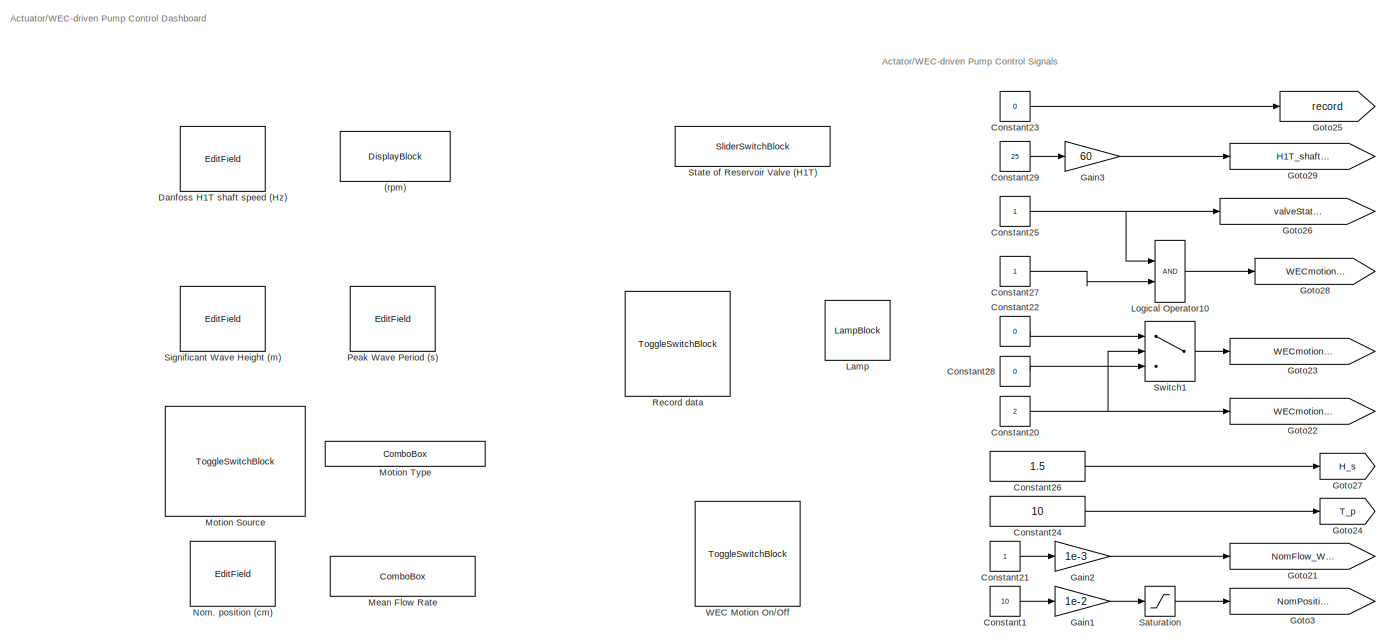
[diagram: root canvas - part 1/3, top left region]
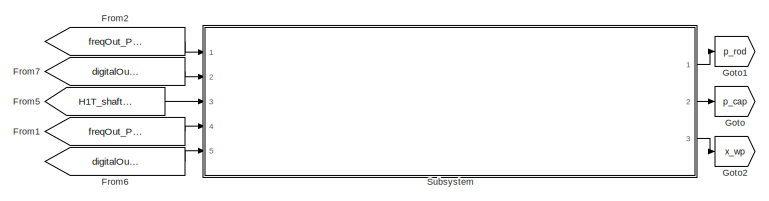
[diagram: root canvas - part 2/3, middle right region]
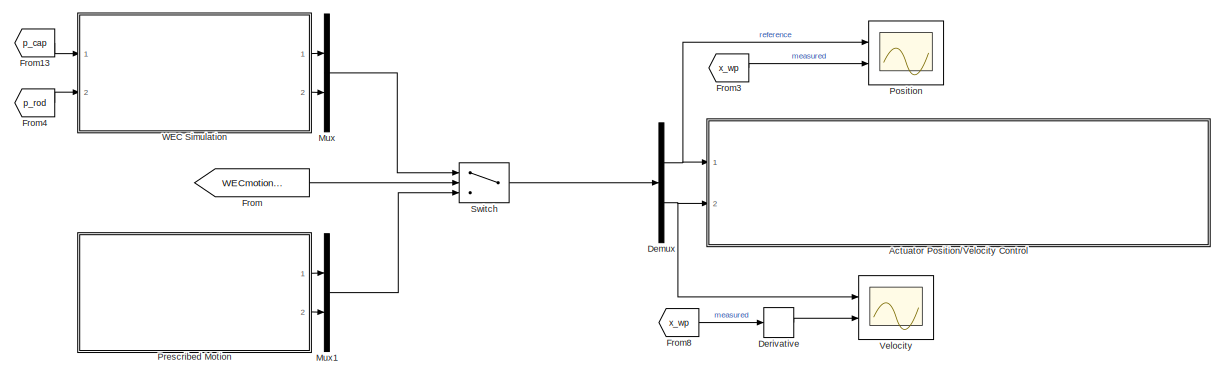
[diagram: root canvas - part 3/3, bottom center region]
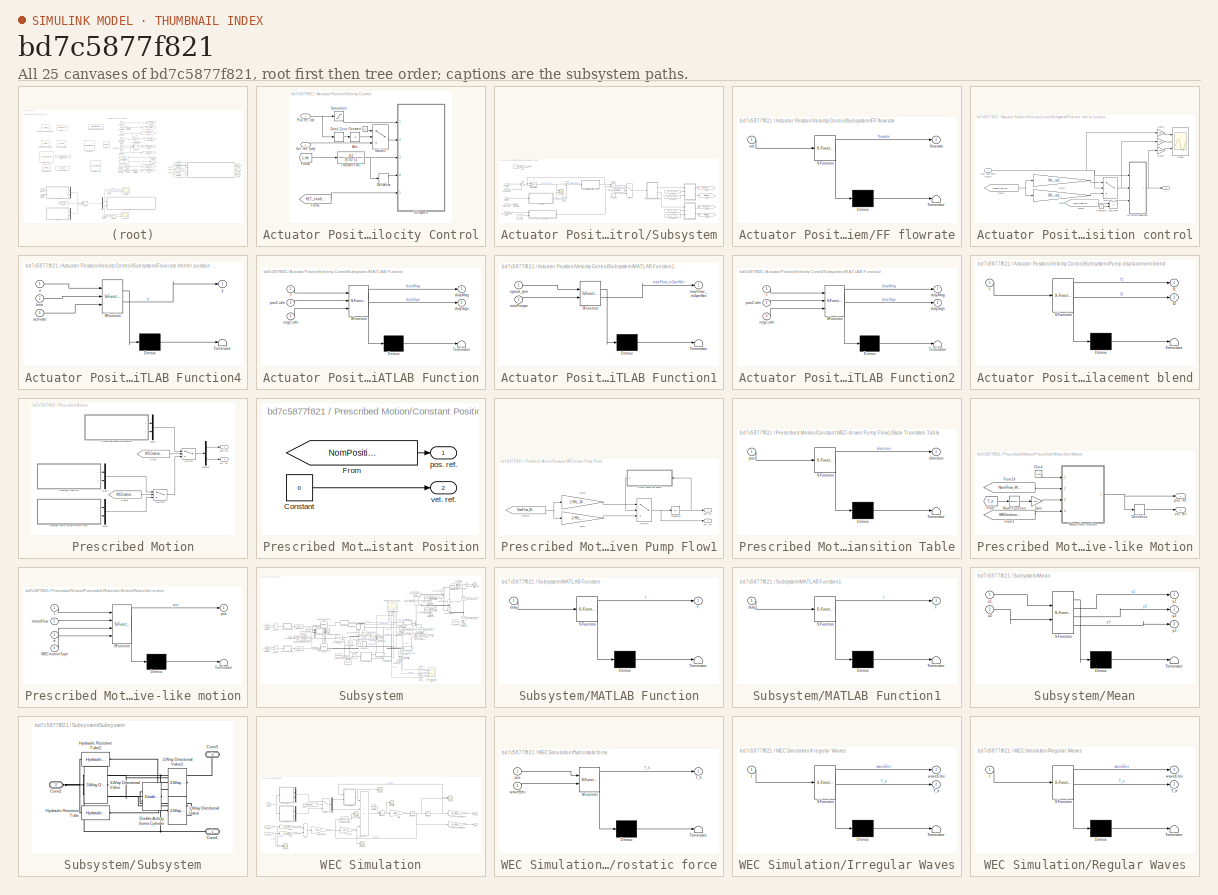
[diagram: thumbnail index - all 25 canvases of the model, root first then tree order]
MODEL slx_bd7c5877f821
KIND model
CONFIG AbsTol = auto
CONFIG EnableMultiTasking = off
CONFIG FixedStep = 0.001
CONFIG InitFcn = addpath('SCADA'); \ninitFcn_SCADA;
CONFIG MaxStep = 0.01
CONFIG MinStep = auto
CONFIG RelTol = 1e-3
CONFIG SampleTimeConstraint = Unconstrained
CONFIG SolverName = VariableStepAuto
CONFIG StartTime = 0.0
CONFIG StopTime = 10
WORKSPACE source: mxarray member
WORKSPACE WECmotionOnOff: Simulink.Parameter (value not decoded)
BLOCK [DisplayBlock] (rpm)
  Commented = on
  Format = long
  LabelPosition = Hide
  NameLocation = top
  Transparency = 1
BLOCK [SubSystem] Actuator Position//Velocity Control
  Ports = [2]
  RequestExecContextInheritance = off
BLOCK [Abs] Actuator Position//Velocity Control/Abs
  SaturateOnIntegerOverflow = off
BLOCK [Constant] Actuator Position//Velocity Control/Constant
  Value = 0
BLOCK [DeadZone] Actuator Position//Velocity Control/Dead Zone
  LowerValue = HIL_WECpump_negativeCtrlLimit
  UpperValue = HIL_WECpump_positiveCtrlLimit
BLOCK [Derivative] Actuator Position//Velocity Control/Derivative
BLOCK [From] Actuator Position//Velocity Control/From1
  GotoTag = H1T_shaftSpeed
  TagVisibility = global
BLOCK [From] Actuator Position//Velocity Control/From4
  GotoTag = x_wp
  TagVisibility = global
BLOCK [Inport] Actuator Position//Velocity Control/Pos. ref. (m)
BLOCK [Saturate] Actuator Position//Velocity Control/Saturation
  LowerLimit = HIL_WECpump_negativeCtrlLimit
  UpperLimit = HIL_WECpump_positiveCtrlLimit
BLOCK [SubSystem] Actuator Position//Velocity Control/Subsystem
  Ports = [5]
  RequestExecContextInheritance = off
BLOCK [Constant] Actuator Position//Velocity Control/Subsystem/Constant
  Value = HIL_H1T_P1posCutIn
BLOCK [Constant] Actuator Position//Velocity Control/Subsystem/Constant1
  Value = HIL_H1T_P1negCutIn
BLOCK [Constant] Actuator Position//Velocity Control/Subsystem/Constant2
  Value = 2
BLOCK [Constant] Actuator Position//Velocity Control/Subsystem/Constant3
  Value = 0
BLOCK [Constant] Actuator Position//Velocity Control/Subsystem/Constant4
  Value = HIL_H1T_P2posCutIn
BLOCK [Constant] Actuator Position//Velocity Control/Subsystem/Constant5
  Value = HIL_H1T_P2negCutIn
BLOCK [Product] Actuator Position//Velocity Control/Subsystem/Divide1
  Inputs = */
  Ports = [2, 1]
BLOCK [SubSystem] Actuator Position//Velocity Control/Subsystem/FF flowrate
  ErrorFcn = Stateflow.Translate.translate
  PermitHierarchicalResolution = ExplicitOnly
  Ports = [1, 1]
  RequestExecContextInheritance = off
  SFBlockType = MATLAB Function
  TreatAsAtomicUnit = on
BLOCK [Demux] Actuator Position//Velocity Control/Subsystem/FF flowrate/ Demux 
  Outputs = 1
  Ports = [1, 1]
BLOCK [S-Function] Actuator Position//Velocity Control/Subsystem/FF flowrate/ SFunction 
  EnableBusSupport = on
  FunctionName = sf_sfun
  Parameters = HIL_act_A_cap,HIL_act_A_rod
  PortCounts = [1 2]
  Ports = [1, 2]
  SFcnIsStateOwnerBlock = off
  SFunctionDeploymentMode = off
  Tag = Stateflow S-Function 3
BLOCK [Terminator] Actuator Position//Velocity Control/Subsystem/FF flowrate/ Terminator 
BLOCK [Outport] Actuator Position//Velocity Control/Subsystem/FF flowrate/flowrate
BLOCK [Inport] Actuator Position//Velocity Control/Subsystem/FF flowrate/vel
BLOCK [SubSystem] Actuator Position//Velocity Control/Subsystem/Flow rate limit for position control
  Ports = [1, 1]
  RequestExecContextInheritance = off
BLOCK [Constant] Actuator Position//Velocity Control/Subsystem/Flow rate limit for position control/Constant6
BLOCK [From] Actuator Position//Velocity Control/Subsystem/Flow rate limit for position control/From2
  GotoTag = WECmotionType
  TagVisibility = global
BLOCK [From] Actuator Position//Velocity Control/Subsystem/Flow rate limit for position control/From3
  GotoTag = NomFlow_WECpump
  TagVisibility = global
BLOCK [Gain] Actuator Position//Velocity Control/Subsystem/Flow rate limit for position control/Gain
  Gain = HIL_act_A_rod/HIL_WECpump_A_rod
BLOCK [Gain] Actuator Position//Velocity Control/Subsystem/Flow rate limit for position control/Gain1
  Gain = HIL_act_A_cap/HIL_WECpump_A_cap
BLOCK [Gain] Actuator Position//Velocity Control/Subsystem/Flow rate limit for position control/Gain2
  Gain = 1e3
BLOCK [Gain] Actuator Position//Velocity Control/Subsystem/Flow rate limit for position control/Gain3
  Gain = 1e3
BLOCK [Gain] Actuator Position//Velocity Control/Subsystem/Flow rate limit for position control/Gain4
  Gain = 1e3
BLOCK [RelationalOperator] Actuator Position//Velocity Control/Subsystem/Flow rate limit for position control/Less Than
  InputSameDT = off
  Operator = ==
  OutDataTypeStr = boolean
  Ports = [2, 1]
  RndMeth = Simplest
BLOCK [SubSystem] Actuator Position//Velocity Control/Subsystem/Flow rate limit for position control/MATLAB Function4
  ErrorFcn = Stateflow.Translate.translate
  PermitHierarchicalResolution = ExplicitOnly
  Ports = [3, 1]
  RequestExecContextInheritance = off
  SFBlockType = MATLAB Function
  TreatAsAtomicUnit = on
BLOCK [Demux] Actuator Position//Velocity Control/Subsystem/Flow rate limit for position control/MATLAB Function4/ Demux 
  Outputs = 1
  Ports = [1, 1]
BLOCK [S-Function] Actuator Position//Velocity Control/Subsystem/Flow rate limit for position control/MATLAB Function4/ SFunction 
  EnableBusSupport = on
  FunctionName = sf_sfun
  PortCounts = [3 2]
  Ports = [3, 2]
  SFcnIsStateOwnerBlock = off
  SFunctionDeploymentMode = off
  Tag = Stateflow S-Function 8
BLOCK [Terminator] Actuator Position//Velocity Control/Subsystem/Flow rate limit for position control/MATLAB Function4/ Terminator 
BLOCK [Inport] Actuator Position//Velocity Control/Subsystem/Flow rate limit for position control/MATLAB Function4/activate
  Port = 3
BLOCK [Inport] Actuator Position//Velocity Control/Subsystem/Flow rate limit for position control/MATLAB Function4/limit
  Port = 2
BLOCK [Inport] Actuator Position//Velocity Control/Subsystem/Flow rate limit for position control/MATLAB Function4/u
BLOCK [Outport] Actuator Position//Velocity Control/Subsystem/Flow rate limit for position control/MATLAB Function4/y
BLOCK [Scope] Actuator Position//Velocity Control/Subsystem/Flow rate limit for position control/Scope
  Floating = off
  NumInputPorts = 3
  Ports = [3]
  ScopeSpecificationString = Simulink.scopes.TimeScopeBlockCfg('CurrentConfiguration', extmgr.ConfigurationSet(extmgr.Configuration('Core','General UI',true),extmgr.Configuration('Core','Source UI',true),extmgr.Configuration('Sources','WiredSimulink',true,'DataLoggingVariableName','ScopeData1'),extmgr.Configuration('Visuals','Time Domain',true,'SerializedDisplays',{struct('MinYLimReal','-0.19035','MaxYLimReal','0.93525','YLab...<+1762ch>
BLOCK [Switch] Actuator Position//Velocity Control/Subsystem/Flow rate limit for position control/Switch
  Criteria = u2 > Threshold
  InputSameDT = off
  SaturateOnIntegerOverflow = off
BLOCK [Inport] Actuator Position//Velocity Control/Subsystem/Flow rate limit for position control/flow rate cmd (m3//s)
BLOCK [Outport] Actuator Position//Velocity Control/Subsystem/Flow rate limit for position control/y
BLOCK [From] Actuator Position//Velocity Control/Subsystem/From
  GotoTag = WECmotionOnOff
  TagVisibility = global
BLOCK [Gain] Actuator Position//Velocity Control/Subsystem/Gain
  Commented = on
  Gain = HIL_H1T_kp
BLOCK [Gain] Actuator Position//Velocity Control/Subsystem/Gain1
  Gain = 0
BLOCK [Goto] Actuator Position//Velocity Control/Subsystem/Goto1
  GotoTag = freqOut_PWMpump1
  TagVisibility = global
BLOCK [Goto] Actuator Position//Velocity Control/Subsystem/Goto3
  GotoTag = digitalOut_DirectionPump1
  TagVisibility = global
BLOCK [Goto] Actuator Position//Velocity Control/Subsystem/Goto4
  GotoTag = freqOut_PWMpump2
  TagVisibility = global
BLOCK [Goto] Actuator Position//Velocity Control/Subsystem/Goto6
  GotoTag = digitalOut_DirectionPump2
  TagVisibility = global
BLOCK [Inport] Actuator Position//Velocity Control/Subsystem/H1T shaft speed (rpm)
  Port = 5
BLOCK [SubSystem] Actuator Position//Velocity Control/Subsystem/MATLAB Function
  ErrorFcn = Stateflow.Translate.translate
  PermitHierarchicalResolution = ExplicitOnly
  Ports = [3, 2]
  RequestExecContextInheritance = off
  SFBlockType = MATLAB Function
  TreatAsAtomicUnit = on
BLOCK [Demux] Actuator Position//Velocity Control/Subsystem/MATLAB Function/ Demux 
  Outputs = 1
  Ports = [1, 1]
BLOCK [S-Function] Actuator Position//Velocity Control/Subsystem/MATLAB Function/ SFunction 
  EnableBusSupport = on
  FunctionName = sf_sfun
  PortCounts = [3 3]
  Ports = [3, 3]
  SFcnIsStateOwnerBlock = off
  SFunctionDeploymentMode = off
  Tag = Stateflow S-Function 2
BLOCK [Terminator] Actuator Position//Velocity Control/Subsystem/MATLAB Function/ Terminator 
BLOCK [Outport] Actuator Position//Velocity Control/Subsystem/MATLAB Function/dutyMag
BLOCK [Outport] Actuator Position//Velocity Control/Subsystem/MATLAB Function/dutySign
  Port = 2
BLOCK [Inport] Actuator Position//Velocity Control/Subsystem/MATLAB Function/f
BLOCK [Inport] Actuator Position//Velocity Control/Subsystem/MATLAB Function/negCutIn
  Port = 3
BLOCK [Inport] Actuator Position//Velocity Control/Subsystem/MATLAB Function/posCutIn
  Port = 2
BLOCK [SubSystem] Actuator Position//Velocity Control/Subsystem/MATLAB Function1
  ErrorFcn = Stateflow.Translate.translate
  PermitHierarchicalResolution = ExplicitOnly
  Ports = [2, 1]
  RequestExecContextInheritance = off
  SFBlockType = MATLAB Function
  TreatAsAtomicUnit = on
BLOCK [Demux] Actuator Position//Velocity Control/Subsystem/MATLAB Function1/ Demux 
  Outputs = 1
  Ports = [1, 1]
BLOCK [S-Function] Actuator Position//Velocity Control/Subsystem/MATLAB Function1/ SFunction 
  EnableBusSupport = on
  FunctionName = sf_sfun
  Parameters = HIL_H1T_D
  PortCounts = [2 2]
  Ports = [2, 2]
  SFcnIsStateOwnerBlock = off
  SFunctionDeploymentMode = off
  Tag = Stateflow S-Function 1
BLOCK [Terminator] Actuator Position//Velocity Control/Subsystem/MATLAB Function1/ Terminator 
BLOCK [Outport] Actuator Position//Velocity Control/Subsystem/MATLAB Function1/maxFlow_m3perSec
BLOCK [Inport] Actuator Position//Velocity Control/Subsystem/MATLAB Function1/numPumps
  Port = 2
BLOCK [Inport] Actuator Position//Velocity Control/Subsystem/MATLAB Function1/speed_rpm
BLOCK [SubSystem] Actuator Position//Velocity Control/Subsystem/MATLAB Function2
  ErrorFcn = Stateflow.Translate.translate
  PermitHierarchicalResolution = ExplicitOnly
  Ports = [3, 2]
  RequestExecContextInheritance = off
  SFBlockType = MATLAB Function
  TreatAsAtomicUnit = on
BLOCK [Demux] Actuator Position//Velocity Control/Subsystem/MATLAB Function2/ Demux 
  Outputs = 1
  Ports = [1, 1]
BLOCK [S-Function] Actuator Position//Velocity Control/Subsystem/MATLAB Function2/ SFunction 
  EnableBusSupport = on
  FunctionName = sf_sfun
  PortCounts = [3 3]
  Ports = [3, 3]
  SFcnIsStateOwnerBlock = off
  SFunctionDeploymentMode = off
  Tag = Stateflow S-Function 11
BLOCK [Terminator] Actuator Position//Velocity Control/Subsystem/MATLAB Function2/ Terminator 
BLOCK [Outport] Actuator Position//Velocity Control/Subsystem/MATLAB Function2/dutyMag
BLOCK [Outport] Actuator Position//Velocity Control/Subsystem/MATLAB Function2/dutySign
  Port = 2
BLOCK [Inport] Actuator Position//Velocity Control/Subsystem/MATLAB Function2/f
BLOCK [Inport] Actuator Position//Velocity Control/Subsystem/MATLAB Function2/negCutIn
  Port = 3
BLOCK [Inport] Actuator Position//Velocity Control/Subsystem/MATLAB Function2/posCutIn
  Port = 2
BLOCK [Reference] Actuator Position//Velocity Control/Subsystem/PID Controller  REF=slpidlib/PID Controller
  Ports = [2, 1]
  SourceBlock = slpidlib/PID Controller
  SourceProductBaseCode = SL
  SourceType = PID 1dof
BLOCK [Inport] Actuator Position//Velocity Control/Subsystem/Pos. meas. (m)
  Port = 3
  SampleTime = 0.01
BLOCK [Inport] Actuator Position//Velocity Control/Subsystem/Pos. ref. (m)
  SampleTime = 0.01
BLOCK [SubSystem] Actuator Position//Velocity Control/Subsystem/Pump displacement blend
  ErrorFcn = Stateflow.Translate.translate
  PermitHierarchicalResolution = ExplicitOnly
  Ports = [1, 2]
  RequestExecContextInheritance = off
  SFBlockType = MATLAB Function
  TreatAsAtomicUnit = on
BLOCK [Demux] Actuator Position//Velocity Control/Subsystem/Pump displacement blend/ Demux 
  Outputs = 1
  Ports = [1, 1]
BLOCK [S-Function] Actuator Position//Velocity Control/Subsystem/Pump displacement blend/ SFunction 
  EnableBusSupport = on
  FunctionName = sf_sfun
  Parameters = HIL_H1T_P1fBias,HIL_H1T_P2fBias
  PortCounts = [1 3]
  Ports = [1, 3]
  SFcnIsStateOwnerBlock = off
  SFunctionDeploymentMode = off
  Tag = Stateflow S-Function 12
BLOCK [Terminator] Actuator Position//Velocity Control/Subsystem/Pump displacement blend/ Terminator 
BLOCK [Inport] Actuator Position//Velocity Control/Subsystem/Pump displacement blend/f
BLOCK [Outport] Actuator Position//Velocity Control/Subsystem/Pump displacement blend/f1
BLOCK [Outport] Actuator Position//Velocity Control/Subsystem/Pump displacement blend/f2
  Port = 2
BLOCK [Scope] Actuator Position//Velocity Control/Subsystem/Scope
  Floating = off
  NumInputPorts = 2
  Ports = [2]
  ScopeSpecificationString = Simulink.scopes.TimeScopeBlockCfg('CurrentConfiguration', extmgr.ConfigurationSet(extmgr.Configuration('Core','General UI',true),extmgr.Configuration('Core','Source UI',true),extmgr.Configuration('Sources','WiredSimulink',true,'DataLoggingVariableName','ScopeData1'),extmgr.Configuration('Visuals','Time Domain',true,'SerializedDisplays',{struct('MinYLimReal','-0.00117','MaxYLimReal','0.00074','YLab...<+1437ch>
BLOCK [Sum] Actuator Position//Velocity Control/Subsystem/Sum
  Inputs = |+-
  Ports = [2, 1]
BLOCK [Sum] Actuator Position//Velocity Control/Subsystem/Sum1
  Inputs = |++
  Ports = [2, 1]
BLOCK [Switch] Actuator Position//Velocity Control/Subsystem/Switch2
  InputSameDT = off
  SaturateOnIntegerOverflow = off
  Threshold = 1
BLOCK [Terminator] Actuator Position//Velocity Control/Subsystem/Terminator
BLOCK [Inport] Actuator Position//Velocity Control/Subsystem/Vel. meas. (m//s)
  Port = 4
  SampleTime = 0.01
BLOCK [Inport] Actuator Position//Velocity Control/Subsystem/Vel. ref. (m//s)
  Port = 2
  SampleTime = 0.01
BLOCK [Switch] Actuator Position//Velocity Control/Switch1
  Criteria = u2 > Threshold
  InputSameDT = off
  SaturateOnIntegerOverflow = off
BLOCK [TransferFcn] Actuator Position//Velocity Control/Transfer Fcn1
  Denominator = [0.02 1]
BLOCK [Inport] Actuator Position//Velocity Control/Vel. ref. (m//s)
  Port = 2
BLOCK [Constant] Constant1
  Value = 10
BLOCK [Constant] Constant20
  Value = 2
BLOCK [Constant] Constant21
BLOCK [Constant] Constant22
  Value = 0
BLOCK [Constant] Constant23
  Value = 0
BLOCK [Constant] Constant24
  Value = 10
BLOCK [Constant] Constant25
BLOCK [Constant] Constant26
  Value = 1.5
BLOCK [Constant] Constant27
BLOCK [Constant] Constant28
  Value = 0
BLOCK [Constant] Constant29
  Value = 25
BLOCK [EditField] Danfoss H1T shaft speed (Hz)
  Alignment = Center
  LabelPosition = Hide
  NameLocation = top
  ShowInitialText = on
BLOCK [Demux] Demux
  Outputs = 2
  Ports = [1, 2]
BLOCK [Derivative] Derivative
BLOCK [From] From
  GotoTag = WECmotionSource
  TagVisibility = global
BLOCK [From] From1
  GotoTag = freqOut_PWMpump2
  TagVisibility = global
BLOCK [From] From13
  GotoTag = p_cap
  TagVisibility = global
BLOCK [From] From2
  GotoTag = freqOut_PWMpump1
  TagVisibility = global
BLOCK [From] From3
  GotoTag = x_wp
  TagVisibility = global
BLOCK [From] From4
  GotoTag = p_rod
  TagVisibility = global
BLOCK [From] From5
  GotoTag = H1T_shaftSpeed
  TagVisibility = global
BLOCK [From] From6
  GotoTag = digitalOut_DirectionPump2
  TagVisibility = global
BLOCK [From] From7
  GotoTag = digitalOut_DirectionPump1
  TagVisibility = global
BLOCK [From] From8
  GotoTag = x_wp
  TagVisibility = global
BLOCK [Gain] Gain1
  Gain = 1e-2
BLOCK [Gain] Gain2
  Gain = 1e-3
BLOCK [Gain] Gain3
  Gain = 60
BLOCK [Goto] Goto
  GotoTag = p_cap
  TagVisibility = global
BLOCK [Goto] Goto1
  GotoTag = p_rod
  TagVisibility = global
BLOCK [Goto] Goto2
  GotoTag = x_wp
  TagVisibility = global
BLOCK [Goto] Goto21
  GotoTag = NomFlow_WECpump
  TagVisibility = global
BLOCK [Goto] Goto22
  GotoTag = WECmotionType
  TagVisibility = global
BLOCK [Goto] Goto23
  GotoTag = WECmotionSource
  TagVisibility = global
BLOCK [Goto] Goto24
  GotoTag = T_p
  TagVisibility = global
BLOCK [Goto] Goto25
  GotoTag = record
  TagVisibility = global
BLOCK [Goto] Goto26
  GotoTag = valveState_H1Treservoir
  TagVisibility = global
BLOCK [Goto] Goto27
  GotoTag = H_s
  TagVisibility = global
BLOCK [Goto] Goto28
  GotoTag = WECmotionOnOff
  TagVisibility = global
BLOCK [Goto] Goto29
  GotoTag = H1T_shaftSpeed
  TagVisibility = global
BLOCK [Goto] Goto3
  GotoTag = NomPosition_WECpump
  TagVisibility = global
BLOCK [LampBlock] Lamp
  LabelPosition = Hide
BLOCK [Logic] Logical Operator10
  AllPortsSameDT = off
  OutDataTypeStr = boolean
  Ports = [2, 1]
BLOCK [ComboBox] Mean Flow Rate
  LabelPosition = Hide
  NameLocation = top
  SelectedLabel = 1 L/s
BLOCK [ToggleSwitchBlock] Motion Source
  LabelPosition = Hide
  NameLocation = top
BLOCK [ComboBox] Motion Type
  LabelPosition = Hide
  NameLocation = top
  SelectedLabel = Regular Waves
BLOCK [Mux] Mux
  DisplayOption = bar
  Inputs = 2
  Ports = [2, 1]
BLOCK [Mux] Mux1
  DisplayOption = bar
  Inputs = 2
  Ports = [2, 1]
BLOCK [EditField] Nom. position (cm)
  Alignment = Center
  LabelPosition = Hide
  NameLocation = top
  ShowInitialText = on
BLOCK [EditField] Peak Wave Period (s)
  Alignment = Center
  LabelPosition = Hide
  NameLocation = top
  ShowInitialText = on
BLOCK [Scope] Position
  Floating = off
  NumInputPorts = 2
  Ports = [2]
  ScopeSpecificationString = Simulink.scopes.TimeScopeBlockCfg('CurrentConfiguration', extmgr.ConfigurationSet(extmgr.Configuration('Core','General UI',true),extmgr.Configuration('Core','Source UI',true),extmgr.Configuration('Sources','WiredSimulink',true,'DataLoggingVariableName','ScopeData1'),extmgr.Configuration('Visuals','Time Domain',true,'SerializedDisplays',{struct('MinYLimReal','-0.16141','MaxYLimReal','0.16112','YLab...<+1991ch>
BLOCK [SubSystem] Prescribed Motion
  Ports = [0, 2]
  RequestExecContextInheritance = off
BLOCK [SubSystem] Prescribed Motion/Constant Position
  Ports = [0, 2]
  RequestExecContextInheritance = off
BLOCK [Constant] Prescribed Motion/Constant Position/Constant
  Value = 0
BLOCK [From] Prescribed Motion/Constant Position/From
  GotoTag = NomPosition_WECpump
  TagVisibility = global
BLOCK [Outport] Prescribed Motion/Constant Position/pos. ref.
BLOCK [Outport] Prescribed Motion/Constant Position/vel. ref.
  Port = 2
BLOCK [SubSystem] Prescribed Motion/Constant WEC-driven Pump Flow1
  Ports = [0, 2]
  RequestExecContextInheritance = off
BLOCK [From] Prescribed Motion/Constant WEC-driven Pump Flow1/From14
  GotoTag = NomFlow_WECpump
  TagVisibility = global
BLOCK [Gain] Prescribed Motion/Constant WEC-driven Pump Flow1/Gain
  Gain = -1/HIL_WECpump_A_rod
BLOCK [Gain] Prescribed Motion/Constant WEC-driven Pump Flow1/Gain1
  Gain = 1/HIL_WECpump_A_cap
BLOCK [Integrator] Prescribed Motion/Constant WEC-driven Pump Flow1/Integrator
  Ports = [1, 1]
BLOCK [SubSystem] Prescribed Motion/Constant WEC-driven Pump Flow1/State Transition Table
  ErrorFcn = Stateflow.Translate.translate
  NameLocation = top
  PermitHierarchicalResolution = ExplicitOnly
  Ports = [1, 1]
  RequestExecContextInheritance = off
  SFBlockType = State Transition Table
  TreatAsAtomicUnit = on
BLOCK [Demux] Prescribed Motion/Constant WEC-driven Pump Flow1/State Transition Table/ Demux 
  Outputs = 1
  Ports = [1, 1]
BLOCK [S-Function] Prescribed Motion/Constant WEC-driven Pump Flow1/State Transition Table/ SFunction 
  EnableBusSupport = on
  FunctionName = sf_sfun
  Parameters = HIL_WECpump_negativeCtrlLimit,HIL_WECpump_positiveCtrlLimit
  PortCounts = [1 2]
  Ports = [1, 2]
  SFcnIsStateOwnerBlock = off
  SFunctionDeploymentMode = off
  Tag = Stateflow S-Function 14
BLOCK [Terminator] Prescribed Motion/Constant WEC-driven Pump Flow1/State Transition Table/ Terminator 
BLOCK [Outport] Prescribed Motion/Constant WEC-driven Pump Flow1/State Transition Table/direction
BLOCK [Inport] Prescribed Motion/Constant WEC-driven Pump Flow1/State Transition Table/pos
BLOCK [Switch] Prescribed Motion/Constant WEC-driven Pump Flow1/Switch
  Criteria = u2 > Threshold
  InputSameDT = off
  SaturateOnIntegerOverflow = off
BLOCK [Outport] Prescribed Motion/Constant WEC-driven Pump Flow1/pos. ref.
BLOCK [Outport] Prescribed Motion/Constant WEC-driven Pump Flow1/vel. ref.
  Port = 2
BLOCK [Demux] Prescribed Motion/Demux
  Outputs = 2
  Ports = [1, 2]
BLOCK [From] Prescribed Motion/From
  GotoTag = WECmotionType
  TagVisibility = global
BLOCK [From] Prescribed Motion/From1
  GotoTag = WECmotionType
  TagVisibility = global
BLOCK [Mux] Prescribed Motion/Mux1
  DisplayOption = bar
  Inputs = 2
  Ports = [2, 1]
BLOCK [Mux] Prescribed Motion/Mux2
  DisplayOption = bar
  Inputs = 2
  Ports = [2, 1]
BLOCK [Mux] Prescribed Motion/Mux3
  DisplayOption = bar
  Inputs = 2
  Ports = [2, 1]
BLOCK [SubSystem] Prescribed Motion/Prescribed Wave-like Motion
  Ports = [0, 2]
  RequestExecContextInheritance = off
BLOCK [Clock] Prescribed Motion/Prescribed Wave-like Motion/Clock
BLOCK [Derivative] Prescribed Motion/Prescribed Wave-like Motion/Derivative
BLOCK [From] Prescribed Motion/Prescribed Wave-like Motion/From
  GotoTag = T_p
  TagVisibility = global
BLOCK [From] Prescribed Motion/Prescribed Wave-like Motion/From1
  GotoTag = WECmotionType
  TagVisibility = global
BLOCK [From] Prescribed Motion/Prescribed Wave-like Motion/From14
  GotoTag = NomFlow_WECpump
  TagVisibility = global
BLOCK [Gain] Prescribed Motion/Prescribed Wave-like Motion/Gain
  Gain = 2*pi
BLOCK [Math] Prescribed Motion/Prescribed Wave-like Motion/Math Function
  Operator = reciprocal
  Ports = [1, 1]
BLOCK [SubSystem] Prescribed Motion/Prescribed Wave-like Motion/Wave-like motion
  ErrorFcn = Stateflow.Translate.translate
  PermitHierarchicalResolution = ExplicitOnly
  Ports = [4, 1]
  RequestExecContextInheritance = off
  SFBlockType = MATLAB Function
  TreatAsAtomicUnit = on
BLOCK [Demux] Prescribed Motion/Prescribed Wave-like Motion/Wave-like motion/ Demux 
  Outputs = 1
  Ports = [1, 1]
BLOCK [S-Function] Prescribed Motion/Prescribed Wave-like Motion/Wave-like motion/ SFunction 
  EnableBusSupport = on
  FunctionName = sf_sfun
  Parameters = HIL_WECpump_A_cap,HIL_WECpump_A_rod
  PortCounts = [4 2]
  Ports = [4, 2]
  SFcnIsStateOwnerBlock = off
  SFunctionDeploymentMode = off
  Tag = Stateflow S-Function 9
BLOCK [Terminator] Prescribed Motion/Prescribed Wave-like Motion/Wave-like motion/ Terminator 
BLOCK [Inport] Prescribed Motion/Prescribed Wave-like Motion/Wave-like motion/WECmotionType
  Port = 4
BLOCK [Inport] Prescribed Motion/Prescribed Wave-like Motion/Wave-like motion/meanFlow
  Port = 2
BLOCK [Outport] Prescribed Motion/Prescribed Wave-like Motion/Wave-like motion/pos
BLOCK [Inport] Prescribed Motion/Prescribed Wave-like Motion/Wave-like motion/t
BLOCK [Inport] Prescribed Motion/Prescribed Wave-like Motion/Wave-like motion/w
  Port = 3
BLOCK [Outport] Prescribed Motion/Prescribed Wave-like Motion/pos. ref.
BLOCK [Outport] Prescribed Motion/Prescribed Wave-like Motion/vel. ref.
  Port = 2
BLOCK [Switch] Prescribed Motion/Switch
  InputSameDT = off
  SaturateOnIntegerOverflow = off
  Threshold = 2
BLOCK [Switch] Prescribed Motion/Switch1
  InputSameDT = off
  SaturateOnIntegerOverflow = off
  Threshold = 1
BLOCK [Outport] Prescribed Motion/pos. ref.
BLOCK [Outport] Prescribed Motion/vel. ref.
  Port = 2
BLOCK [ToggleSwitchBlock] Record data
  LabelPosition = Hide
  NameLocation = top
BLOCK [Saturate] Saturation
BLOCK [EditField] Significant Wave Height (m)
  Alignment = Center
  LabelPosition = Hide
  NameLocation = top
  ShowInitialText = on
BLOCK [SliderSwitchBlock] State of Reservoir Valve (H1T)
  LabelPosition = Hide
  NameLocation = top
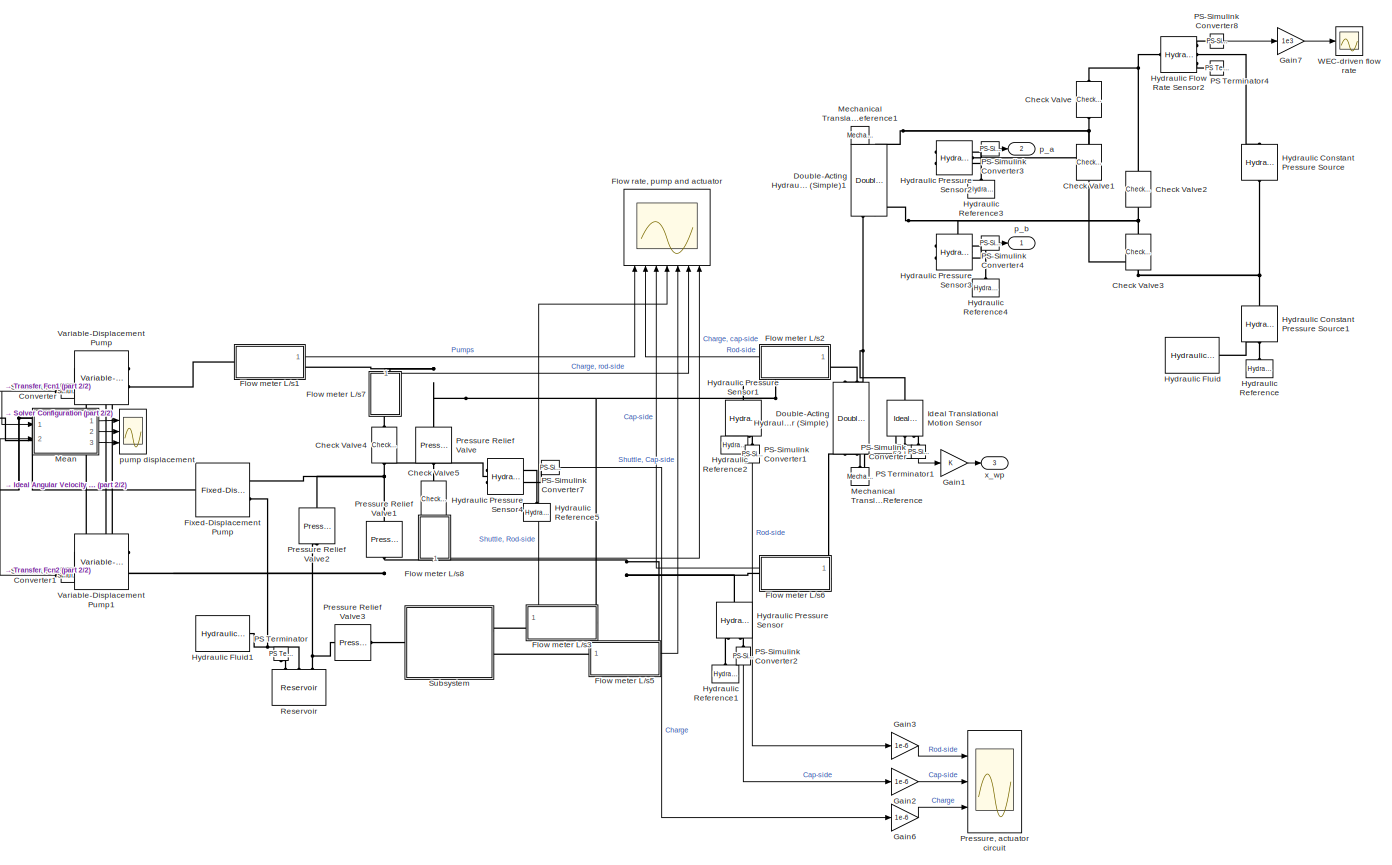
[diagram: Subsystem - part 1/2, most of the canvas]
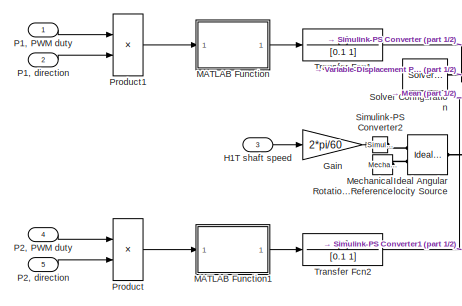
[diagram: Subsystem - part 2/2, middle left region]
BLOCK [SubSystem] Subsystem
  Ports = [5, 3]
  RequestExecContextInheritance = off
  TreatAsAtomicUnit = on
BLOCK [Reference] Subsystem/Check Valve  REF=sh_lib/Valves/Directional Valves/Check Valve
  NameLocation = right
  Ports = [0, 0, 0, 0, 0, 1, 1]
  SourceBlock = sh_lib/Valves/Directional Valves/Check Valve
  SourceProductBaseCode = SH
  SourceType = Check Valve
BLOCK [Reference] Subsystem/Check Valve1  REF=sh_lib/Valves/Directional Valves/Check Valve
  NameLocation = right
  Ports = [0, 0, 0, 0, 0, 1, 1]
  SourceBlock = sh_lib/Valves/Directional Valves/Check Valve
  SourceProductBaseCode = SH
  SourceType = Check Valve
BLOCK [Reference] Subsystem/Check Valve2  REF=sh_lib/Valves/Directional Valves/Check Valve
  NameLocation = right
  Ports = [0, 0, 0, 0, 0, 1, 1]
  SourceBlock = sh_lib/Valves/Directional Valves/Check Valve
  SourceProductBaseCode = SH
  SourceType = Check Valve
BLOCK [Reference] Subsystem/Check Valve3  REF=sh_lib/Valves/Directional Valves/Check Valve
  NameLocation = right
  Ports = [0, 0, 0, 0, 0, 1, 1]
  SourceBlock = sh_lib/Valves/Directional Valves/Check Valve
  SourceProductBaseCode = SH
  SourceType = Check Valve
BLOCK [Reference] Subsystem/Check Valve4  REF=sh_lib/Valves/Directional Valves/Check Valve
  NameLocation = left
  Ports = [0, 0, 0, 0, 0, 1, 1]
  SourceBlock = sh_lib/Valves/Directional Valves/Check Valve
  SourceProductBaseCode = SH
  SourceType = Check Valve
BLOCK [Reference] Subsystem/Check Valve5  REF=sh_lib/Valves/Directional Valves/Check Valve
  NameLocation = right
  Ports = [0, 0, 0, 0, 0, 1, 1]
  SourceBlock = sh_lib/Valves/Directional Valves/Check Valve
  SourceProductBaseCode = SH
  SourceType = Check Valve
BLOCK [Reference] Subsystem/Double-Acting Hydraulic Cylinder (Simple)  REF=sh_lib/Hydraulic Cylinders/Double-Acting
Hydraulic Cylinder
(Simple)
  NameLocation = right
  Ports = [0, 0, 0, 0, 0, 2, 2]
  SourceBlock = sh_lib/Hydraulic Cylinders/Double-Acting\nHydraulic Cylinder\n(Simple)
  SourceProductBaseCode = SH
  SourceType = Double-Acting\nHydraulic Cylinder\n(Simple)
BLOCK [Reference] Subsystem/Double-Acting Hydraulic Cylinder (Simple)1  REF=sh_lib/Hydraulic Cylinders/Double-Acting
Hydraulic Cylinder
(Simple)
  NameLocation = right
  Ports = [0, 0, 0, 0, 0, 2, 2]
  SourceBlock = sh_lib/Hydraulic Cylinders/Double-Acting\nHydraulic Cylinder\n(Simple)
  SourceProductBaseCode = SH
  SourceType = Double-Acting\nHydraulic Cylinder\n(Simple)
BLOCK [Reference] Subsystem/Fixed-Displacement Pump  REF=sh_lib/Pumps and Motors/Fixed-Displacement
Pump
  Ports = [0, 0, 0, 0, 0, 1, 2]
  SourceBlock = sh_lib/Pumps and Motors/Fixed-Displacement\nPump
  SourceProductBaseCode = SH
  SourceType = Fixed-Displacement\nPump
BLOCK [SubSystem] Subsystem/Flow meter L//s1
  Ports = [0, 1, 0, 0, 0, 1, 1]
  ReferencedSubsystem = Flow_meter_L_s
  RequestExecContextInheritance = off
BLOCK [SubSystem] Subsystem/Flow meter L//s2
  PortSchema = {"entries":[{"content":{"sides":[{"content":{"connectorIds":["Out1","LConn1"]},"type":"ConnectorPlacement.EquallySpacedRectSide","uuid":"d44e5720-9e66-471e-94a4-9637237ee7d4"},{"content":{"connectorIds":["RConn1"],"side":"RIGHT"},"type":"ConnectorPlacement.EquallySpacedRectSide","uuid":"c0bd2997-7dbc-4043-b61a-302206a871bf"},{"content":{"connectorIds":[],"side":"TOP"},"type":"ConnectorPlacement.Eq...<+252ch>
  Ports = [0, 1, 0, 0, 0, 1, 1]
  ReferencedSubsystem = Flow_meter_L_s
  RequestExecContextInheritance = off
BLOCK [SubSystem] Subsystem/Flow meter L//s3
  NameLocation = top
  PortSchema = {"entries":[{"content":{"sides":[{"content":{"connectorIds":["Out1"]},"type":"ConnectorPlacement.EquallySpacedRectSide","uuid":"d44e5720-9e66-471e-94a4-9637237ee7d4"},{"content":{"connectorIds":["RConn1"],"side":"RIGHT"},"type":"ConnectorPlacement.EquallySpacedRectSide","uuid":"c0bd2997-7dbc-4043-b61a-302206a871bf"},{"content":{"connectorIds":["LConn1"],"side":"TOP"},"type":"ConnectorPlacement.Equ...<+251ch>
  Ports = [0, 1, 0, 0, 0, 1, 1]
  ReferencedSubsystem = Flow_meter_L_s
  RequestExecContextInheritance = off
BLOCK [SubSystem] Subsystem/Flow meter L//s5
  NameLocation = top
  PortSchema = {"entries":[{"content":{"sides":[{"content":{"connectorIds":["Out1"]},"type":"ConnectorPlacement.EquallySpacedRectSide","uuid":"d44e5720-9e66-471e-94a4-9637237ee7d4"},{"content":{"connectorIds":["RConn1"],"side":"RIGHT"},"type":"ConnectorPlacement.EquallySpacedRectSide","uuid":"c0bd2997-7dbc-4043-b61a-302206a871bf"},{"content":{"connectorIds":["LConn1"],"side":"TOP"},"type":"ConnectorPlacement.Equ...<+251ch>
  Ports = [0, 1, 0, 0, 0, 1, 1]
  ReferencedSubsystem = Flow_meter_L_s
  RequestExecContextInheritance = off
BLOCK [SubSystem] Subsystem/Flow meter L//s6
  PortSchema = {"entries":[{"content":{"sides":[{"content":{"connectorIds":["LConn1"]},"type":"ConnectorPlacement.EquallySpacedRectSide","uuid":"d44e5720-9e66-471e-94a4-9637237ee7d4"},{"content":{"connectorIds":["RConn1"],"side":"RIGHT"},"type":"ConnectorPlacement.EquallySpacedRectSide","uuid":"c0bd2997-7dbc-4043-b61a-302206a871bf"},{"content":{"connectorIds":["Out1"],"side":"TOP"},"type":"ConnectorPlacement.Equ...<+395ch>
  Ports = [0, 1, 0, 0, 0, 1, 1]
  ReferencedSubsystem = Flow_meter_L_s
  RequestExecContextInheritance = off
BLOCK [SubSystem] Subsystem/Flow meter L//s7
  NameLocation = left
  PortSchema = {"entries":[{"content":{"sides":[{"content":{"connectorIds":["LConn1"]},"type":"ConnectorPlacement.EquallySpacedRectSide","uuid":"d44e5720-9e66-471e-94a4-9637237ee7d4"},{"content":{"connectorIds":["RConn1"],"side":"RIGHT"},"type":"ConnectorPlacement.EquallySpacedRectSide","uuid":"c0bd2997-7dbc-4043-b61a-302206a871bf"},{"content":{"connectorIds":[],"side":"TOP"},"type":"ConnectorPlacement.EquallySp...<+395ch>
  Ports = [0, 1, 0, 0, 0, 1, 1]
  ReferencedSubsystem = Flow_meter_L_s
  RequestExecContextInheritance = off
BLOCK [SubSystem] Subsystem/Flow meter L//s8
  NameLocation = right
  PortSchema = {"entries":[{"content":{"sides":[{"content":{"connectorIds":["LConn1"]},"type":"ConnectorPlacement.EquallySpacedRectSide","uuid":"d44e5720-9e66-471e-94a4-9637237ee7d4"},{"content":{"connectorIds":["RConn1"],"side":"RIGHT"},"type":"ConnectorPlacement.EquallySpacedRectSide","uuid":"c0bd2997-7dbc-4043-b61a-302206a871bf"},{"content":{"connectorIds":["Out1"],"side":"TOP"},"type":"ConnectorPlacement.Equ...<+395ch>
  Ports = [0, 1, 0, 0, 0, 1, 1]
  ReferencedSubsystem = Flow_meter_L_s
  RequestExecContextInheritance = off
BLOCK [Scope] Subsystem/Flow rate, pump and actuator
  Floating = off
  NameLocation = top
  NumInputPorts = 7
  Ports = [7]
  ScopeSpecificationString = Simulink.scopes.TimeScopeBlockCfg('CurrentConfiguration', extmgr.ConfigurationSet(extmgr.Configuration('Core','General UI',true),extmgr.Configuration('Core','Source UI',true),extmgr.Configuration('Sources','WiredSimulink',true,'DataLoggingVariableName','ScopeData1'),extmgr.Configuration('Visuals','Time Domain',true,'SerializedDisplays',{struct('MinYLimReal','-0.29196','MaxYLimReal','0.42229','YLab...<+2097ch>
BLOCK [Gain] Subsystem/Gain
  Gain = 2*pi/60
BLOCK [Gain] Subsystem/Gain1
BLOCK [Gain] Subsystem/Gain2
  Gain = 1e-6
  NameLocation = top
BLOCK [Gain] Subsystem/Gain3
  Gain = 1e-6
  NameLocation = top
BLOCK [Gain] Subsystem/Gain6
  Gain = 1e-6
  NameLocation = top
BLOCK [Gain] Subsystem/Gain7
  Gain = 1e3
BLOCK [Inport] Subsystem/H1T shaft speed
  Port = 3
BLOCK [Reference] Subsystem/Hydraulic Constant Pressure Source  REF=fl_lib/Hydraulic/Hydraulic Sources/Hydraulic Constant
Pressure Source
  NameLocation = right
  Ports = [0, 0, 0, 0, 0, 1, 1]
  SourceBlock = fl_lib/Hydraulic/Hydraulic Sources/Hydraulic Constant\nPressure Source
  SourceProductBaseCode = PW,SS,VE
  SourceType = Hydraulic Constant\nPressure Source
BLOCK [Reference] Subsystem/Hydraulic Constant Pressure Source1  REF=fl_lib/Hydraulic/Hydraulic Sources/Hydraulic Constant
Pressure Source
  NameLocation = right
  Ports = [0, 0, 0, 0, 0, 1, 1]
  SourceBlock = fl_lib/Hydraulic/Hydraulic Sources/Hydraulic Constant\nPressure Source
  SourceProductBaseCode = PW,SS,VE
  SourceType = Hydraulic Constant\nPressure Source
BLOCK [Reference] Subsystem/Hydraulic Flow Rate Sensor2  REF=fl_lib/Hydraulic/Hydraulic Sensors/Hydraulic Flow Rate
Sensor
  Ports = [0, 0, 0, 0, 0, 1, 3]
  SourceBlock = fl_lib/Hydraulic/Hydraulic Sensors/Hydraulic Flow Rate\nSensor
  SourceProductBaseCode = PW,SS,VE
  SourceType = Hydraulic Flow Rate\nSensor
BLOCK [Reference] Subsystem/Hydraulic Fluid  REF=sh_lib/Hydraulic Utilities/Hydraulic Fluid
  Ports = [0, 0, 0, 0, 0, 0, 1]
  SourceBlock = sh_lib/Hydraulic Utilities/Hydraulic Fluid
  SourceProductBaseCode = SH
  SourceType = Hydraulic Fluid
BLOCK [Reference] Subsystem/Hydraulic Fluid1  REF=sh_lib/Hydraulic Utilities/Hydraulic Fluid
  Ports = [0, 0, 0, 0, 0, 0, 1]
  SourceBlock = sh_lib/Hydraulic Utilities/Hydraulic Fluid
  SourceProductBaseCode = SH
  SourceType = Hydraulic Fluid
BLOCK [Reference] Subsystem/Hydraulic Pressure Sensor  REF=fl_lib/Hydraulic/Hydraulic Sensors/Hydraulic Pressure
Sensor
  NameLocation = left
  Ports = [0, 0, 0, 0, 0, 1, 2]
  SourceBlock = fl_lib/Hydraulic/Hydraulic Sensors/Hydraulic Pressure\nSensor
  SourceProductBaseCode = PW,SS,VE
  SourceType = Hydraulic Pressure\nSensor
BLOCK [Reference] Subsystem/Hydraulic Pressure Sensor1  REF=fl_lib/Hydraulic/Hydraulic Sensors/Hydraulic Pressure
Sensor
  NameLocation = left
  Ports = [0, 0, 0, 0, 0, 1, 2]
  SourceBlock = fl_lib/Hydraulic/Hydraulic Sensors/Hydraulic Pressure\nSensor
  SourceProductBaseCode = PW,SS,VE
  SourceType = Hydraulic Pressure\nSensor
BLOCK [Reference] Subsystem/Hydraulic Pressure Sensor2  REF=fl_lib/Hydraulic/Hydraulic Sensors/Hydraulic Pressure
Sensor
  Ports = [0, 0, 0, 0, 0, 1, 2]
  SourceBlock = fl_lib/Hydraulic/Hydraulic Sensors/Hydraulic Pressure\nSensor
  SourceProductBaseCode = PW,SS,VE
  SourceType = Hydraulic Pressure\nSensor
BLOCK [Reference] Subsystem/Hydraulic Pressure Sensor3  REF=fl_lib/Hydraulic/Hydraulic Sensors/Hydraulic Pressure
Sensor
  Ports = [0, 0, 0, 0, 0, 1, 2]
  SourceBlock = fl_lib/Hydraulic/Hydraulic Sensors/Hydraulic Pressure\nSensor
  SourceProductBaseCode = PW,SS,VE
  SourceType = Hydraulic Pressure\nSensor
BLOCK [Reference] Subsystem/Hydraulic Pressure Sensor4  REF=fl_lib/Hydraulic/Hydraulic Sensors/Hydraulic Pressure
Sensor
  Ports = [0, 0, 0, 0, 0, 1, 2]
  SourceBlock = fl_lib/Hydraulic/Hydraulic Sensors/Hydraulic Pressure\nSensor
  SourceProductBaseCode = PW,SS,VE
  SourceType = Hydraulic Pressure\nSensor
BLOCK [Reference] Subsystem/Hydraulic Reference  REF=fl_lib/Hydraulic/Hydraulic Elements/Hydraulic Reference
  NameLocation = right
  Ports = [0, 0, 0, 0, 0, 1]
  SourceBlock = fl_lib/Hydraulic/Hydraulic Elements/Hydraulic Reference
  SourceProductBaseCode = PW,SS,VE
  SourceType = Hydraulic Reference
BLOCK [Reference] Subsystem/Hydraulic Reference1  REF=fl_lib/Hydraulic/Hydraulic Elements/Hydraulic Reference
  NameLocation = right
  Ports = [0, 0, 0, 0, 0, 1]
  SourceBlock = fl_lib/Hydraulic/Hydraulic Elements/Hydraulic Reference
  SourceProductBaseCode = PW,SS,VE
  SourceType = Hydraulic Reference
BLOCK [Reference] Subsystem/Hydraulic Reference2  REF=fl_lib/Hydraulic/Hydraulic Elements/Hydraulic Reference
  NameLocation = right
  Ports = [0, 0, 0, 0, 0, 1]
  SourceBlock = fl_lib/Hydraulic/Hydraulic Elements/Hydraulic Reference
  SourceProductBaseCode = PW,SS,VE
  SourceType = Hydraulic Reference
BLOCK [Reference] Subsystem/Hydraulic Reference3  REF=fl_lib/Hydraulic/Hydraulic Elements/Hydraulic Reference
  NameLocation = right
  Ports = [0, 0, 0, 0, 0, 1]
  SourceBlock = fl_lib/Hydraulic/Hydraulic Elements/Hydraulic Reference
  SourceProductBaseCode = PW,SS,VE
  SourceType = Hydraulic Reference
BLOCK [Reference] Subsystem/Hydraulic Reference4  REF=fl_lib/Hydraulic/Hydraulic Elements/Hydraulic Reference
  NameLocation = right
  Ports = [0, 0, 0, 0, 0, 1]
  SourceBlock = fl_lib/Hydraulic/Hydraulic Elements/Hydraulic Reference
  SourceProductBaseCode = PW,SS,VE
  SourceType = Hydraulic Reference
BLOCK [Reference] Subsystem/Hydraulic Reference5  REF=fl_lib/Hydraulic/Hydraulic Elements/Hydraulic Reference
  NameLocation = right
  Ports = [0, 0, 0, 0, 0, 1]
  SourceBlock = fl_lib/Hydraulic/Hydraulic Elements/Hydraulic Reference
  SourceProductBaseCode = PW,SS,VE
  SourceType = Hydraulic Reference
BLOCK [Reference] Subsystem/Ideal Angular Velocity Source  REF=fl_lib/Mechanical/Mechanical Sources/Ideal Angular
Velocity Source
  Ports = [0, 0, 0, 0, 0, 1, 2]
  SourceBlock = fl_lib/Mechanical/Mechanical Sources/Ideal Angular\nVelocity Source
  SourceProductBaseCode = PW,SS,VE
  SourceType = Ideal Angular\nVelocity Source
BLOCK [Reference] Subsystem/Ideal Translational Motion Sensor  REF=fl_lib/Mechanical/Mechanical Sensors/Ideal Translational
Motion Sensor
  NameLocation = left
  Ports = [0, 0, 0, 0, 0, 1, 3]
  SourceBlock = fl_lib/Mechanical/Mechanical Sensors/Ideal Translational\nMotion Sensor
  SourceProductBaseCode = PW,SS,VE
  SourceType = Ideal Translational\nMotion Sensor
BLOCK [SubSystem] Subsystem/MATLAB Function
  ErrorFcn = Stateflow.Translate.translate
  PermitHierarchicalResolution = ExplicitOnly
  Ports = [1, 1]
  RequestExecContextInheritance = off
  SFBlockType = MATLAB Function
  TreatAsAtomicUnit = on
BLOCK [Demux] Subsystem/MATLAB Function/ Demux 
  Outputs = 1
  Ports = [1, 1]
BLOCK [S-Function] Subsystem/MATLAB Function/ SFunction 
  EnableBusSupport = on
  FunctionName = sf_sfun
  PortCounts = [1 2]
  Ports = [1, 2]
  SFcnIsStateOwnerBlock = off
  SFunctionDeploymentMode = off
  Tag = Stateflow S-Function 4
BLOCK [Terminator] Subsystem/MATLAB Function/ Terminator 
BLOCK [Inport] Subsystem/MATLAB Function/duty
BLOCK [Outport] Subsystem/MATLAB Function/f
BLOCK [SubSystem] Subsystem/MATLAB Function1
  ErrorFcn = Stateflow.Translate.translate
  PermitHierarchicalResolution = ExplicitOnly
  Ports = [1, 1]
  RequestExecContextInheritance = off
  SFBlockType = MATLAB Function
  TreatAsAtomicUnit = on
BLOCK [Demux] Subsystem/MATLAB Function1/ Demux 
  Outputs = 1
  Ports = [1, 1]
BLOCK [S-Function] Subsystem/MATLAB Function1/ SFunction 
  EnableBusSupport = on
  FunctionName = sf_sfun
  PortCounts = [1 2]
  Ports = [1, 2]
  SFcnIsStateOwnerBlock = off
  SFunctionDeploymentMode = off
  Tag = Stateflow S-Function 10
BLOCK [Terminator] Subsystem/MATLAB Function1/ Terminator 
BLOCK [Inport] Subsystem/MATLAB Function1/duty
BLOCK [Outport] Subsystem/MATLAB Function1/f
BLOCK [SubSystem] Subsystem/Mean
  ErrorFcn = Stateflow.Translate.translate
  PermitHierarchicalResolution = ExplicitOnly
  Ports = [2, 3]
  RequestExecContextInheritance = off
  SFBlockType = MATLAB Function
  TreatAsAtomicUnit = on
BLOCK [Demux] Subsystem/Mean/ Demux 
  Outputs = 1
  Ports = [1, 1]
BLOCK [S-Function] Subsystem/Mean/ SFunction 
  EnableBusSupport = on
  FunctionName = sf_sfun
  PortCounts = [2 4]
  Ports = [2, 4]
  SFcnIsStateOwnerBlock = off
  SFunctionDeploymentMode = off
  Tag = Stateflow S-Function 13
BLOCK [Terminator] Subsystem/Mean/ Terminator 
BLOCK [Inport] Subsystem/Mean/u1
BLOCK [Inport] Subsystem/Mean/u2
  Port = 2
BLOCK [Outport] Subsystem/Mean/y1
BLOCK [Outport] Subsystem/Mean/y2
  Port = 2
BLOCK [Outport] Subsystem/Mean/y3
  Port = 3
BLOCK [Reference] Subsystem/Mechanical Rotational Reference  REF=fl_lib/Mechanical/Rotational Elements/Mechanical
Rotational Reference
  Ports = [0, 0, 0, 0, 0, 1]
  SourceBlock = fl_lib/Mechanical/Rotational Elements/Mechanical\nRotational Reference
  SourceProductBaseCode = PW,SS,VE
  SourceType = Mechanical\nRotational Reference
BLOCK [Reference] Subsystem/Mechanical Translational Reference  REF=fl_lib/Mechanical/Translational
Elements/Mechanical
Translational
Reference
  NameLocation = right
  Ports = [0, 0, 0, 0, 0, 1]
  SourceBlock = fl_lib/Mechanical/Translational\nElements/Mechanical\nTranslational\nReference
  SourceProductBaseCode = PW,SS,VE
  SourceType = Mechanical\nTranslational\nReference
BLOCK [Reference] Subsystem/Mechanical Translational Reference1  REF=fl_lib/Mechanical/Translational
Elements/Mechanical
Translational
Reference
  NameLocation = left
  Ports = [0, 0, 0, 0, 0, 1]
  SourceBlock = fl_lib/Mechanical/Translational\nElements/Mechanical\nTranslational\nReference
  SourceProductBaseCode = PW,SS,VE
  SourceType = Mechanical\nTranslational\nReference
BLOCK [Inport] Subsystem/P1, PWM duty
BLOCK [Inport] Subsystem/P1, direction
  Port = 2
BLOCK [Inport] Subsystem/P2, PWM duty
  Port = 4
BLOCK [Inport] Subsystem/P2, direction
  Port = 5
BLOCK [Reference] Subsystem/PS Terminator  REF=fl_lib/Physical Signals/Sinks/PS Terminator
  NameLocation = right
  Ports = [0, 0, 0, 0, 0, 1]
  SourceBlock = fl_lib/Physical Signals/Sinks/PS Terminator
  SourceProductBaseCode = PW,SS,VE
  SourceType = PS Terminator
BLOCK [Reference] Subsystem/PS Terminator1  REF=fl_lib/Physical Signals/Sinks/PS Terminator
  NameLocation = left
  Ports = [0, 0, 0, 0, 0, 1]
  SourceBlock = fl_lib/Physical Signals/Sinks/PS Terminator
  SourceProductBaseCode = PW,SS,VE
  SourceType = PS Terminator
BLOCK [Reference] Subsystem/PS Terminator4  REF=fl_lib/Physical Signals/Sinks/PS Terminator
  Ports = [0, 0, 0, 0, 0, 1]
  SourceBlock = fl_lib/Physical Signals/Sinks/PS Terminator
  SourceProductBaseCode = PW,SS,VE
  SourceType = PS Terminator
BLOCK [Reference] Subsystem/PS-Simulink Converter  REF=nesl_utility/PS-Simulink
Converter
  NameLocation = left
  Ports = [0, 1, 0, 0, 0, 1]
  SourceBlock = nesl_utility/PS-Simulink\nConverter
  SourceProductBaseCode = SS,PW,VE
  SourceType = PS-Simulink\nConverter
BLOCK [Reference] Subsystem/PS-Simulink Converter1  REF=nesl_utility/PS-Simulink
Converter
  NameLocation = top
  Ports = [0, 1, 0, 0, 0, 1]
  SourceBlock = nesl_utility/PS-Simulink\nConverter
  SourceProductBaseCode = SS,PW,VE
  SourceType = PS-Simulink\nConverter
BLOCK [Reference] Subsystem/PS-Simulink Converter2  REF=nesl_utility/PS-Simulink
Converter
  NameLocation = top
  Ports = [0, 1, 0, 0, 0, 1]
  SourceBlock = nesl_utility/PS-Simulink\nConverter
  SourceProductBaseCode = SS,PW,VE
  SourceType = PS-Simulink\nConverter
BLOCK [Reference] Subsystem/PS-Simulink Converter3  REF=nesl_utility/PS-Simulink
Converter
  NameLocation = left
  Ports = [0, 1, 0, 0, 0, 1]
  SourceBlock = nesl_utility/PS-Simulink\nConverter
  SourceProductBaseCode = SS,PW,VE
  SourceType = PS-Simulink\nConverter
BLOCK [Reference] Subsystem/PS-Simulink Converter4  REF=nesl_utility/PS-Simulink
Converter
  NameLocation = left
  Ports = [0, 1, 0, 0, 0, 1]
  SourceBlock = nesl_utility/PS-Simulink\nConverter
  SourceProductBaseCode = SS,PW,VE
  SourceType = PS-Simulink\nConverter
BLOCK [Reference] Subsystem/PS-Simulink Converter7  REF=nesl_utility/PS-Simulink
Converter
  NameLocation = left
  Ports = [0, 1, 0, 0, 0, 1]
  SourceBlock = nesl_utility/PS-Simulink\nConverter
  SourceProductBaseCode = SS,PW,VE
  SourceType = PS-Simulink\nConverter
BLOCK [Reference] Subsystem/PS-Simulink Converter8  REF=nesl_utility/PS-Simulink
Converter
  Ports = [0, 1, 0, 0, 0, 1]
  SourceBlock = nesl_utility/PS-Simulink\nConverter
  SourceProductBaseCode = SS,PW,VE
  SourceType = PS-Simulink\nConverter
BLOCK [Reference] Subsystem/Pressure Relief Valve  REF=sh_lib/Valves/Pressure Control
Valves/Pressure Relief
Valve
  NameLocation = right
  Ports = [0, 0, 0, 0, 0, 1, 1]
  SourceBlock = sh_lib/Valves/Pressure Control\nValves/Pressure Relief\nValve
  SourceProductBaseCode = SH
  SourceType = Pressure Relief\nValve
BLOCK [Reference] Subsystem/Pressure Relief Valve1  REF=sh_lib/Valves/Pressure Control
Valves/Pressure Relief
Valve
  NameLocation = left
  Ports = [0, 0, 0, 0, 0, 1, 1]
  SourceBlock = sh_lib/Valves/Pressure Control\nValves/Pressure Relief\nValve
  SourceProductBaseCode = SH
  SourceType = Pressure Relief\nValve
BLOCK [Reference] Subsystem/Pressure Relief Valve2  REF=sh_lib/Valves/Pressure Control
Valves/Pressure Relief
Valve
  NameLocation = right
  Ports = [0, 0, 0, 0, 0, 1, 1]
  SourceBlock = sh_lib/Valves/Pressure Control\nValves/Pressure Relief\nValve
  SourceProductBaseCode = SH
  SourceType = Pressure Relief\nValve
BLOCK [Reference] Subsystem/Pressure Relief Valve3  REF=sh_lib/Valves/Pressure Control
Valves/Pressure Relief
Valve
  Ports = [0, 0, 0, 0, 0, 1, 1]
  SourceBlock = sh_lib/Valves/Pressure Control\nValves/Pressure Relief\nValve
  SourceProductBaseCode = SH
  SourceType = Pressure Relief\nValve
BLOCK [Scope] Subsystem/Pressure, actuator circuit
  Floating = off
  NameLocation = top
  NumInputPorts = 3
  Ports = [3]
  ScopeSpecificationString = Simulink.scopes.TimeScopeBlockCfg('CurrentConfiguration', extmgr.ConfigurationSet(extmgr.Configuration('Core','General UI',true),extmgr.Configuration('Core','Source UI',true),extmgr.Configuration('Sources','WiredSimulink',true,'DataLoggingVariableName','ScopeData3'),extmgr.Configuration('Visuals','Time Domain',true,'SerializedDisplays',{struct('MinYLimReal','-6.72076','MaxYLimReal','11.58366','YLa...<+1982ch>
BLOCK [Product] Subsystem/Product
  Ports = [2, 1]
BLOCK [Product] Subsystem/Product1
  Ports = [2, 1]
BLOCK [Reference] Subsystem/Reservoir  REF=sh_lib/Hydraulic Utilities/Reservoir
  NameLocation = right
  Ports = [0, 0, 0, 0, 0, 3]
  SourceBlock = sh_lib/Hydraulic Utilities/Reservoir
  SourceProductBaseCode = SH
  SourceType = Reservoir
BLOCK [Reference] Subsystem/Simulink-PS Converter  REF=nesl_utility/Simulink-PS
Converter
  Ports = [1, 0, 0, 0, 0, 0, 1]
  SourceBlock = nesl_utility/Simulink-PS\nConverter
  SourceProductBaseCode = SS,PW,VE
  SourceType = Simulink-PS\nConverter
BLOCK [Reference] Subsystem/Simulink-PS Converter1  REF=nesl_utility/Simulink-PS
Converter
  Ports = [1, 0, 0, 0, 0, 0, 1]
  SourceBlock = nesl_utility/Simulink-PS\nConverter
  SourceProductBaseCode = SS,PW,VE
  SourceType = Simulink-PS\nConverter
BLOCK [Reference] Subsystem/Simulink-PS Converter2  REF=nesl_utility/Simulink-PS
Converter
  Ports = [1, 0, 0, 0, 0, 0, 1]
  SourceBlock = nesl_utility/Simulink-PS\nConverter
  SourceProductBaseCode = SS,PW,VE
  SourceType = Simulink-PS\nConverter
BLOCK [Reference] Subsystem/Solver Configuration  REF=nesl_utility/Solver
Configuration
  Ports = [0, 0, 0, 0, 0, 0, 1]
  SourceBlock = nesl_utility/Solver\nConfiguration
  SourceProductBaseCode = SS,PW,VE
  SourceType = Solver\nConfiguration
BLOCK [SubSystem] Subsystem/Subsystem
  Ports = [0, 0, 0, 0, 0, 1, 2]
  RequestExecContextInheritance = off
BLOCK [Reference] Subsystem/Subsystem/2-Way Directional Valve  REF=sh_lib/Valves/Directional Valves/2-Way Directional
Valve
  Ports = [0, 0, 0, 0, 0, 2, 1]
  SourceBlock = sh_lib/Valves/Directional Valves/2-Way Directional\nValve
  SourceProductBaseCode = SH
  SourceType = 2-Way Directional\nValve
BLOCK [Reference] Subsystem/Subsystem/2-Way Directional Valve1  REF=sh_lib/Valves/Directional Valves/2-Way Directional
Valve
  Ports = [0, 0, 0, 0, 0, 2, 1]
  SourceBlock = sh_lib/Valves/Directional Valves/2-Way Directional\nValve
  SourceProductBaseCode = SH
  SourceType = 2-Way Directional\nValve
BLOCK [Reference] Subsystem/Subsystem/3-Way Directional Valve  REF=sh_lib/Valves/Directional Valves/3-Way Directional
Valve
  NameLocation = top
  Ports = [0, 0, 0, 0, 0, 1, 3]
  SourceBlock = sh_lib/Valves/Directional Valves/3-Way Directional\nValve
  SourceProductBaseCode = SH
  SourceType = 3-Way Directional\nValve
BLOCK [PMIOPort] Subsystem/Subsystem/Conn1
  Side = Right
BLOCK [PMIOPort] Subsystem/Subsystem/Conn2
  Port = 2
  Side = Left
BLOCK [PMIOPort] Subsystem/Subsystem/Conn3
  Port = 3
  Side = Right
BLOCK [Reference] Subsystem/Subsystem/Double-Acting Servo Cylinder  REF=sh_lib/Valves/Valve Actuators/Double-Acting Servo
Cylinder
  NameLocation = top
  Ports = [0, 0, 0, 0, 0, 2, 1]
  SourceBlock = sh_lib/Valves/Valve Actuators/Double-Acting Servo\nCylinder
  SourceProductBaseCode = SH
  SourceType = Double-Acting Servo\nCylinder
BLOCK [Reference] Subsystem/Subsystem/Hydraulic Resistive Tube  REF=fl_lib/Hydraulic/Hydraulic Elements/Hydraulic Resistive
Tube
  Ports = [0, 0, 0, 0, 0, 1, 1]
  SourceBlock = fl_lib/Hydraulic/Hydraulic Elements/Hydraulic Resistive\nTube
  SourceProductBaseCode = PW,SS,VE
  SourceType = Hydraulic Resistive\nTube
BLOCK [Reference] Subsystem/Subsystem/Hydraulic Resistive Tube2  REF=fl_lib/Hydraulic/Hydraulic Elements/Hydraulic Resistive
Tube
  Ports = [0, 0, 0, 0, 0, 1, 1]
  SourceBlock = fl_lib/Hydraulic/Hydraulic Elements/Hydraulic Resistive\nTube
  SourceProductBaseCode = PW,SS,VE
  SourceType = Hydraulic Resistive\nTube
BLOCK [TransferFcn] Subsystem/Transfer Fcn1
  Denominator = [0.1 1]
BLOCK [TransferFcn] Subsystem/Transfer Fcn2
  Denominator = [0.1 1]
BLOCK [Reference] Subsystem/Variable-Displacement Pump  REF=sh_lib/Pumps and Motors/Variable-Displacement
Pump
  Ports = [0, 0, 0, 0, 0, 2, 2]
  SourceBlock = sh_lib/Pumps and Motors/Variable-Displacement\nPump
  SourceProductBaseCode = SH
  SourceType = Variable-Displacement\nPump
BLOCK [Reference] Subsystem/Variable-Displacement Pump1  REF=sh_lib/Pumps and Motors/Variable-Displacement
Pump
  Ports = [0, 0, 0, 0, 0, 2, 2]
  SourceBlock = sh_lib/Pumps and Motors/Variable-Displacement\nPump
  SourceProductBaseCode = SH
  SourceType = Variable-Displacement\nPump
BLOCK [Scope] Subsystem/WEC-driven flow rate
  Floating = off
  NumInputPorts = 1
  Ports = [1]
  ScopeSpecificationString = Simulink.scopes.TimeScopeBlockCfg('CurrentConfiguration', extmgr.ConfigurationSet(extmgr.Configuration('Core','General UI',true),extmgr.Configuration('Core','Source UI',true),extmgr.Configuration('Sources','WiredSimulink',true,'DataLoggingVariableName','ScopeData1'),extmgr.Configuration('Visuals','Time Domain',true,'SerializedDisplays',{struct('MinYLimReal','-0.0906','MaxYLimReal','0.81536','YLabe...<+1692ch>
BLOCK [Outport] Subsystem/p_a
  Port = 2
BLOCK [Outport] Subsystem/p_b
BLOCK [Scope] Subsystem/pump displacement
  Floating = off
  NumInputPorts = 3
  Ports = [3]
  ScopeSpecificationString = Simulink.scopes.TimeScopeBlockCfg('CurrentConfiguration', extmgr.ConfigurationSet(extmgr.Configuration('Core','General UI',true),extmgr.Configuration('Core','Source UI',true),extmgr.Configuration('Sources','WiredSimulink',true,'DataLoggingVariableName','ScopeData2'),extmgr.Configuration('Visuals','Time Domain',true,'SerializedDisplays',{struct('MinYLimReal','-1.24991','MaxYLimReal','1.24917','YLab...<+2002ch>
BLOCK [Outport] Subsystem/x_wp
  Port = 3
BLOCK [Switch] Switch
  InputSameDT = off
  SaturateOnIntegerOverflow = off
  Threshold = 1
BLOCK [Switch] Switch1
  InputSameDT = off
  SaturateOnIntegerOverflow = off
  Threshold = 2
BLOCK [Scope] Velocity
  Floating = off
  NumInputPorts = 2
  Ports = [2]
  ScopeSpecificationString = Simulink.scopes.TimeScopeBlockCfg('CurrentConfiguration', extmgr.ConfigurationSet(extmgr.Configuration('Core','General UI',true),extmgr.Configuration('Core','Source UI',true),extmgr.Configuration('Sources','WiredSimulink',true,'DataLoggingVariableName','ScopeData2'),extmgr.Configuration('Visuals','Time Domain',true,'SerializedDisplays',{struct('MinYLimReal','-0.03583','MaxYLimReal','0.03523','YLab...<+1995ch>
BLOCK [ToggleSwitchBlock] WEC Motion On//Off
  LabelPosition = Hide
  NameLocation = top
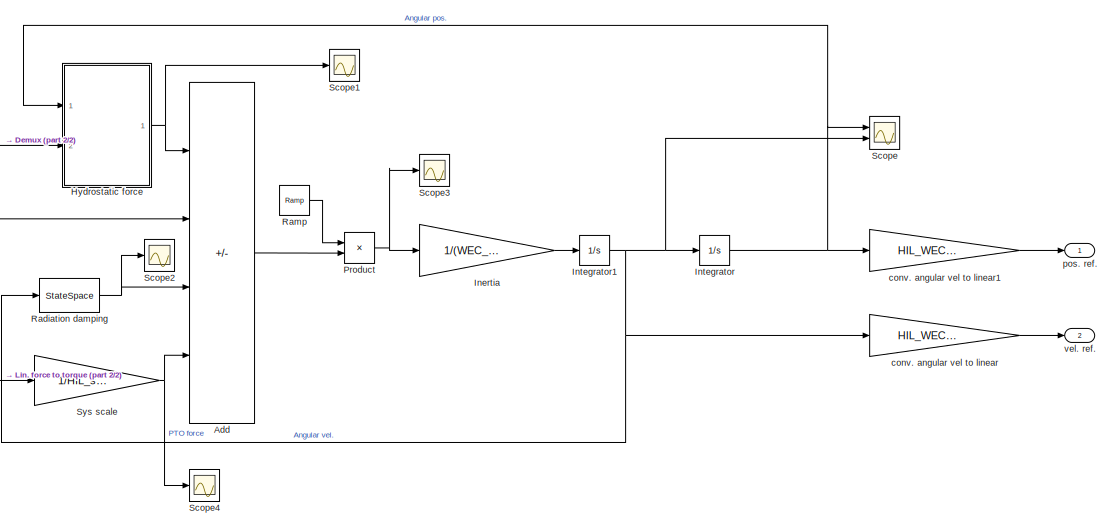
[diagram: WEC Simulation - part 1/2, center side, full height]
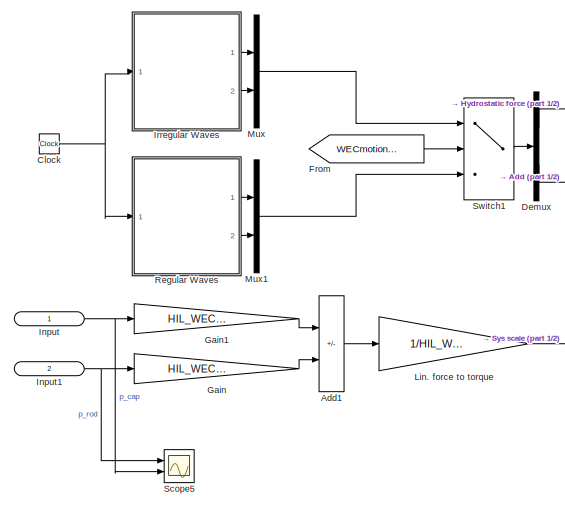
[diagram: WEC Simulation - part 2/2, left side, full height]
BLOCK [SubSystem] WEC Simulation
  Ports = [2, 2]
  RequestExecContextInheritance = off
BLOCK [Sum] WEC Simulation/Add
  IconShape = rectangular
  Inputs = -+-+
  Ports = [4, 1]
BLOCK [Sum] WEC Simulation/Add1
  IconShape = rectangular
  Inputs = +-
  Ports = [2, 1]
BLOCK [Clock] WEC Simulation/Clock
BLOCK [Demux] WEC Simulation/Demux
  Outputs = 2
  Ports = [1, 2]
BLOCK [From] WEC Simulation/From
  GotoTag = WECmotionType
  TagVisibility = global
BLOCK [Gain] WEC Simulation/Gain
  Gain = HIL_WECpump_A_rod
BLOCK [Gain] WEC Simulation/Gain1
  Gain = HIL_WECpump_A_cap
BLOCK [SubSystem] WEC Simulation/Hydrostatic force
  ErrorFcn = Stateflow.Translate.translate
  PermitHierarchicalResolution = ExplicitOnly
  Ports = [2, 1]
  RequestExecContextInheritance = off
  SFBlockType = MATLAB Function
  TreatAsAtomicUnit = on
BLOCK [Demux] WEC Simulation/Hydrostatic force/ Demux 
  Outputs = 1
  Ports = [1, 1]
BLOCK [S-Function] WEC Simulation/Hydrostatic force/ SFunction 
  EnableBusSupport = on
  FunctionName = sf_sfun
  Parameters = WEC_L_cm,WEC_L_flap,WEC_T,WEC_W,WEC_h,WEC_m,g,rho
  PortCounts = [2 2]
  Ports = [2, 2]
  SFcnIsStateOwnerBlock = off
  SFunctionDeploymentMode = off
  Tag = Stateflow S-Function 6
BLOCK [Terminator] WEC Simulation/Hydrostatic force/ Terminator 
BLOCK [Outport] WEC Simulation/Hydrostatic force/T_h
BLOCK [Inport] WEC Simulation/Hydrostatic force/pos
BLOCK [Inport] WEC Simulation/Hydrostatic force/waveElev
  Port = 2
BLOCK [Gain] WEC Simulation/Inertia
  Gain = 1/(WEC_I+WEC_I_inf)
BLOCK [Inport] WEC Simulation/Input
  IconDisplay = Signal name
  SampleTime = 0.01
BLOCK [Inport] WEC Simulation/Input1
  IconDisplay = Signal name
  Port = 2
  SampleTime = 0.01
BLOCK [Integrator] WEC Simulation/Integrator
  Ports = [1, 1]
BLOCK [Integrator] WEC Simulation/Integrator1
  Ports = [1, 1]
BLOCK [SubSystem] WEC Simulation/Irregular Waves
  ErrorFcn = Stateflow.Translate.translate
  PermitHierarchicalResolution = ExplicitOnly
  Ports = [1, 2]
  RequestExecContextInheritance = off
  SFBlockType = MATLAB Function
  TreatAsAtomicUnit = on
BLOCK [Demux] WEC Simulation/Irregular Waves/ Demux 
  Outputs = 1
  Ports = [1, 1]
BLOCK [S-Function] WEC Simulation/Irregular Waves/ SFunction 
  EnableBusSupport = on
  FunctionName = sf_sfun
  Parameters = WEC_F_amp,WEC_dw,WEC_phi_e,WEC_w,wave_S_w,wave_phi
  PortCounts = [1 3]
  Ports = [1, 3]
  SFcnIsStateOwnerBlock = off
  SFunctionDeploymentMode = off
  Tag = Stateflow S-Function 5
BLOCK [Terminator] WEC Simulation/Irregular Waves/ Terminator 
BLOCK [Outport] WEC Simulation/Irregular Waves/T_e
  Port = 2
BLOCK [Inport] WEC Simulation/Irregular Waves/t
BLOCK [Outport] WEC Simulation/Irregular Waves/waveElev
BLOCK [Gain] WEC Simulation/Lin. force to torque
  Gain = 1/HIL_WECpump_ang2lin
BLOCK [Mux] WEC Simulation/Mux
  DisplayOption = bar
  Inputs = 2
  Ports = [2, 1]
BLOCK [Mux] WEC Simulation/Mux1
  DisplayOption = bar
  Inputs = 2
  Ports = [2, 1]
BLOCK [Product] WEC Simulation/Product
  Ports = [2, 1]
BLOCK [StateSpace] WEC Simulation/Radiation damping
  A = WEC_A_rad
  B = WEC_B_rad
  C = [1,0,0]
  D = 0
  InitialCondition = WEC_ICs
  Ports = [1, 1]
BLOCK [Reference] WEC Simulation/Ramp  REF=simulink/Sources/Ramp
  Ports = [0, 1]
  SourceBlock = simulink/Sources/Ramp
  SourceProductBaseCode = SL
  SourceType = Ramp
BLOCK [SubSystem] WEC Simulation/Regular Waves
  ErrorFcn = Stateflow.Translate.translate
  PermitHierarchicalResolution = ExplicitOnly
  Ports = [1, 2]
  RequestExecContextInheritance = off
  SFBlockType = MATLAB Function
  TreatAsAtomicUnit = on
BLOCK [Demux] WEC Simulation/Regular Waves/ Demux 
  Outputs = 1
  Ports = [1, 1]
BLOCK [S-Function] WEC Simulation/Regular Waves/ SFunction 
  EnableBusSupport = on
  FunctionName = sf_sfun
  Parameters = WEC_F_amp,WEC_dw,WEC_phi_e,WEC_w,wave_S_w,wave_phi
  PortCounts = [1 3]
  Ports = [1, 3]
  SFcnIsStateOwnerBlock = off
  SFunctionDeploymentMode = off
  Tag = Stateflow S-Function 7
BLOCK [Terminator] WEC Simulation/Regular Waves/ Terminator 
BLOCK [Outport] WEC Simulation/Regular Waves/T_e
  Port = 2
BLOCK [Inport] WEC Simulation/Regular Waves/t
BLOCK [Outport] WEC Simulation/Regular Waves/waveElev
BLOCK [Scope] WEC Simulation/Scope
  Floating = off
  NumInputPorts = 2
  Ports = [2]
  ScopeSpecificationString = Simulink.scopes.TimeScopeBlockCfg('CurrentConfiguration', extmgr.ConfigurationSet(extmgr.Configuration('Core','General UI',true),extmgr.Configuration('Core','Source UI',true),extmgr.Configuration('Sources','WiredSimulink',true,'DataLoggingVariableName','ScopeData1'),extmgr.Configuration('Visuals','Time Domain',true,'SerializedDisplays',{struct('MinYLimReal','-0.03249','MaxYLimReal','0.06526','YLab...<+1415ch>
BLOCK [Scope] WEC Simulation/Scope1
  Floating = off
  NumInputPorts = 1
  Ports = [1]
  ScopeSpecificationString = Simulink.scopes.TimeScopeBlockCfg('CurrentConfiguration', extmgr.ConfigurationSet(extmgr.Configuration('Core','General UI',true),extmgr.Configuration('Core','Source UI',true),extmgr.Configuration('Sources','WiredSimulink',true,'DataLoggingVariableName','ScopeData2'),extmgr.Configuration('Visuals','Time Domain',true,'SerializedDisplays',{struct('MinYLimReal','-234706.29998','MaxYLimReal','185686.90...<+1443ch>
BLOCK [Scope] WEC Simulation/Scope2
  Floating = off
  NumInputPorts = 1
  Ports = [1]
  ScopeSpecificationString = Simulink.scopes.TimeScopeBlockCfg('CurrentConfiguration', extmgr.ConfigurationSet(extmgr.Configuration('Core','General UI',true),extmgr.Configuration('Core','Source UI',true),extmgr.Configuration('Sources','WiredSimulink',true,'DataLoggingVariableName','ScopeData3'),extmgr.Configuration('Visuals','Time Domain',true,'SerializedDisplays',{struct('MinYLimReal','-542991.75814','MaxYLimReal','2173653.8...<+1418ch>
BLOCK [Scope] WEC Simulation/Scope3
  Floating = off
  NumInputPorts = 1
  Ports = [1]
  ScopeSpecificationString = Simulink.scopes.TimeScopeBlockCfg('CurrentConfiguration', extmgr.ConfigurationSet(extmgr.Configuration('Core','General UI',true),extmgr.Configuration('Core','Source UI',true),extmgr.Configuration('Sources','WiredSimulink',true,'DataLoggingVariableName','ScopeData4'),extmgr.Configuration('Visuals','Time Domain',true,'SerializedDisplays',{struct('MinYLimReal','-723932.69019','MaxYLimReal','1978171.4...<+1408ch>
BLOCK [Scope] WEC Simulation/Scope4
  Floating = off
  NumInputPorts = 1
  Ports = [1]
  ScopeSpecificationString = Simulink.scopes.TimeScopeBlockCfg('CurrentConfiguration', extmgr.ConfigurationSet(extmgr.Configuration('Core','General UI',true),extmgr.Configuration('Core','Source UI',true),extmgr.Configuration('Sources','WiredSimulink',true,'DataLoggingVariableName','ScopeData5'),extmgr.Configuration('Visuals','Time Domain',true,'SerializedDisplays',{struct('MinYLimReal','-895200.23032','MaxYLimReal','1314008.3...<+1410ch>
BLOCK [Scope] WEC Simulation/Scope5
  Floating = off
  NumInputPorts = 2
  Ports = [2]
  ScopeSpecificationString = Simulink.scopes.TimeScopeBlockCfg('CurrentConfiguration', extmgr.ConfigurationSet(extmgr.Configuration('Core','General UI',true),extmgr.Configuration('Core','Source UI',true),extmgr.Configuration('Sources','WiredSimulink',true,'DataLoggingVariableName','ScopeData6'),extmgr.Configuration('Visuals','Time Domain',true,'SerializedDisplays',{struct('MinYLimReal','-95037.3918','MaxYLimReal','24858.92658...<+1398ch>
BLOCK [Switch] WEC Simulation/Switch1
  InputSameDT = off
  SaturateOnIntegerOverflow = off
  Threshold = 2
BLOCK [Gain] WEC Simulation/Sys scale
  Gain = 1/HIL_scale_sys
BLOCK [Gain] WEC Simulation/conv. angular vel to linear
  Gain = HIL_WECpump_ang2lin
BLOCK [Gain] WEC Simulation/conv. angular vel to linear1
  Gain = HIL_WECpump_ang2lin
BLOCK [Outport] WEC Simulation/pos. ref.
BLOCK [Outport] WEC Simulation/vel. ref.
  Port = 2
ANNOTATION (root): Actator/WEC-driven Pump Control Signals
ANNOTATION (root): Actuator/WEC-driven Pump Control Dashboard
LINE Actuator Position//Velocity Control/Abs:1 -> Actuator Position//Velocity Control/Switch1:2
LINE Actuator Position//Velocity Control/Constant:1 -> Actuator Position//Velocity Control/Switch1:1
LINE Actuator Position//Velocity Control/Dead Zone:1 -> Actuator Position//Velocity Control/Abs:1
LINE Actuator Position//Velocity Control/Derivative:1 -> Actuator Position//Velocity Control/Subsystem:4
LINE Actuator Position//Velocity Control/From1:1 -> Actuator Position//Velocity Control/Subsystem:5
LINE Actuator Position//Velocity Control/From4:1 -> Actuator Position//Velocity Control/Transfer Fcn1:1
NET Actuator Position//Velocity Control/Pos. ref. (m):1 -> Actuator Position//Velocity Control/Dead Zone:1, Actuator Position//Velocity Control/Saturation:1
LINE Actuator Position//Velocity Control/Saturation:1 -> Actuator Position//Velocity Control/Subsystem:1
LINE Actuator Position//Velocity Control/Subsystem/Constant1:1 -> Actuator Position//Velocity Control/Subsystem/MATLAB Function:3
LINE Actuator Position//Velocity Control/Subsystem/Constant2:1 -> Actuator Position//Velocity Control/Subsystem/MATLAB Function1:2
LINE Actuator Position//Velocity Control/Subsystem/Constant3:1 -> Actuator Position//Velocity Control/Subsystem/Switch2:3
LINE Actuator Position//Velocity Control/Subsystem/Constant4:1 -> Actuator Position//Velocity Control/Subsystem/MATLAB Function2:2
LINE Actuator Position//Velocity Control/Subsystem/Constant5:1 -> Actuator Position//Velocity Control/Subsystem/MATLAB Function2:3
LINE Actuator Position//Velocity Control/Subsystem/Constant:1 -> Actuator Position//Velocity Control/Subsystem/MATLAB Function:2
LINE Actuator Position//Velocity Control/Subsystem/Divide1:1 -> Actuator Position//Velocity Control/Subsystem/Switch2:1
NET Actuator Position//Velocity Control/Subsystem/FF flowrate:1 -> Actuator Position//Velocity Control/Subsystem/Gain1:1, Actuator Position//Velocity Control/Subsystem/Scope:2
LINE Actuator Position//Velocity Control/Subsystem/Flow rate limit for position control/Constant6:1 -> Actuator Position//Velocity Control/Subsystem/Flow rate limit for position control/Less Than:2
LINE Actuator Position//Velocity Control/Subsystem/Flow rate limit for position control/From2:1 -> Actuator Position//Velocity Control/Subsystem/Flow rate limit for position control/Less Than:1
NET Actuator Position//Velocity Control/Subsystem/Flow rate limit for position control/From3:1 -> Actuator Position//Velocity Control/Subsystem/Flow rate limit for position control/Gain1:1, Actuator Position//Velocity Control/Subsystem/Flow rate limit for position control/Gain:1
LINE Actuator Position//Velocity Control/Subsystem/Flow rate limit for position control/Gain1:1 -> Actuator Position//Velocity Control/Subsystem/Flow rate limit for position control/Switch:1
LINE Actuator Position//Velocity Control/Subsystem/Flow rate limit for position control/Gain2:1 -> Actuator Position//Velocity Control/Subsystem/Flow rate limit for position control/Scope:1
LINE Actuator Position//Velocity Control/Subsystem/Flow rate limit for position control/Gain3:1 -> Actuator Position//Velocity Control/Subsystem/Flow rate limit for position control/Scope:2
LINE Actuator Position//Velocity Control/Subsystem/Flow rate limit for position control/Gain4:1 -> Actuator Position//Velocity Control/Subsystem/Flow rate limit for position control/Scope:3
LINE Actuator Position//Velocity Control/Subsystem/Flow rate limit for position control/Gain:1 -> Actuator Position//Velocity Control/Subsystem/Flow rate limit for position control/Switch:3
LINE Actuator Position//Velocity Control/Subsystem/Flow rate limit for position control/Less Than:1 -> Actuator Position//Velocity Control/Subsystem/Flow rate limit for position control/MATLAB Function4:3
NET Actuator Position//Velocity Control/Subsystem/Flow rate limit for position control/MATLAB Function4:1 -> Actuator Position//Velocity Control/Subsystem/Flow rate limit for position control/Gain4:1, Actuator Position//Velocity Control/Subsystem/Flow rate limit for position control/y:1
NET Actuator Position//Velocity Control/Subsystem/Flow rate limit for position control/Switch:1 -> Actuator Position//Velocity Control/Subsystem/Flow rate limit for position control/Gain3:1, Actuator Position//Velocity Control/Subsystem/Flow rate limit for position control/MATLAB Function4:2
NET Actuator Position//Velocity Control/Subsystem/Flow rate limit for position control/flow rate cmd (m3//s):1 -> Actuator Position//Velocity Control/Subsystem/Flow rate limit for position control/Gain2:1, Actuator Position//Velocity Control/Subsystem/Flow rate limit for position control/MATLAB Function4:1, Actuator Position//Velocity Control/Subsystem/Flow rate limit for position control/Switch:2
NET Actuator Position//Velocity Control/Subsystem/Flow rate limit for position control:1 -> Actuator Position//Velocity Control/Subsystem/Divide1:1, Actuator Position//Velocity Control/Subsystem/PID Controller:2
LINE Actuator Position//Velocity Control/Subsystem/From:1 -> Actuator Position//Velocity Control/Subsystem/Switch2:2
LINE Actuator Position//Velocity Control/Subsystem/Gain1:1 -> Actuator Position//Velocity Control/Subsystem/Sum1:2
LINE Actuator Position//Velocity Control/Subsystem/H1T shaft speed (rpm):1 -> Actuator Position//Velocity Control/Subsystem/MATLAB Function1:1
LINE Actuator Position//Velocity Control/Subsystem/MATLAB Function1:1 -> Actuator Position//Velocity Control/Subsystem/Divide1:2
LINE Actuator Position//Velocity Control/Subsystem/MATLAB Function2:1 -> Actuator Position//Velocity Control/Subsystem/Goto4:1
LINE Actuator Position//Velocity Control/Subsystem/MATLAB Function2:2 -> Actuator Position//Velocity Control/Subsystem/Goto6:1
LINE Actuator Position//Velocity Control/Subsystem/MATLAB Function:1 -> Actuator Position//Velocity Control/Subsystem/Goto1:1
LINE Actuator Position//Velocity Control/Subsystem/MATLAB Function:2 -> Actuator Position//Velocity Control/Subsystem/Goto3:1
NET Actuator Position//Velocity Control/Subsystem/PID Controller:1 -> Actuator Position//Velocity Control/Subsystem/Scope:1, Actuator Position//Velocity Control/Subsystem/Sum1:1
LINE Actuator Position//Velocity Control/Subsystem/Pos. meas. (m):1 -> Actuator Position//Velocity Control/Subsystem/Sum:2
LINE Actuator Position//Velocity Control/Subsystem/Pos. ref. (m):1 -> Actuator Position//Velocity Control/Subsystem/Sum:1
LINE Actuator Position//Velocity Control/Subsystem/Pump displacement blend:1 -> Actuator Position//Velocity Control/Subsystem/MATLAB Function:1
LINE Actuator Position//Velocity Control/Subsystem/Pump displacement blend:2 -> Actuator Position//Velocity Control/Subsystem/MATLAB Function2:1
LINE Actuator Position//Velocity Control/Subsystem/Sum1:1 -> Actuator Position//Velocity Control/Subsystem/Flow rate limit for position control:1
LINE Actuator Position//Velocity Control/Subsystem/Sum:1 -> Actuator Position//Velocity Control/Subsystem/PID Controller:1
LINE Actuator Position//Velocity Control/Subsystem/Switch2:1 -> Actuator Position//Velocity Control/Subsystem/Pump displacement blend:1
LINE Actuator Position//Velocity Control/Subsystem/Vel. meas. (m//s):1 -> Actuator Position//Velocity Control/Subsystem/Terminator:1
LINE Actuator Position//Velocity Control/Subsystem/Vel. ref. (m//s):1 -> Actuator Position//Velocity Control/Subsystem/FF flowrate:1
LINE Actuator Position//Velocity Control/Switch1:1 -> Actuator Position//Velocity Control/Subsystem:2
NET Actuator Position//Velocity Control/Transfer Fcn1:1 -> Actuator Position//Velocity Control/Derivative:1, Actuator Position//Velocity Control/Subsystem:3
LINE Actuator Position//Velocity Control/Vel. ref. (m//s):1 -> Actuator Position//Velocity Control/Switch1:3
LINE Constant1:1 -> Gain1:1
NET Constant20:1 -> Goto22:1, Switch1:2
LINE Constant21:1 -> Gain2:1
LINE Constant22:1 -> Switch1:1
LINE Constant23:1 -> Goto25:1
LINE Constant24:1 -> Goto24:1
NET Constant25:1 -> Goto26:1, Logical Operator10:1
LINE Constant26:1 -> Goto27:1
LINE Constant27:1 -> Logical Operator10:2
LINE Constant28:1 -> Switch1:3
LINE Constant29:1 -> Gain3:1
NET Demux:1 -> Actuator Position//Velocity Control:1, Position:1
NET Demux:2 -> Actuator Position//Velocity Control:2, Velocity:1
LINE Derivative:1 -> Velocity:2
LINE From13:1 -> WEC Simulation:1
LINE From1:1 -> Subsystem:4
LINE From2:1 -> Subsystem:1
LINE From3:1 -> Position:2
LINE From4:1 -> WEC Simulation:2
LINE From5:1 -> Subsystem:3
LINE From6:1 -> Subsystem:5
LINE From7:1 -> Subsystem:2
LINE From8:1 -> Derivative:1
LINE From:1 -> Switch:2
LINE Gain1:1 -> Saturation:1
LINE Gain2:1 -> Goto21:1
LINE Gain3:1 -> Goto29:1
LINE Logical Operator10:1 -> Goto28:1
LINE Mux1:1 -> Switch:3
LINE Mux:1 -> Switch:1
LINE Prescribed Motion/Constant Position/Constant:1 -> Prescribed Motion/Constant Position/vel. ref.:1
LINE Prescribed Motion/Constant Position/From:1 -> Prescribed Motion/Constant Position/pos. ref.:1
LINE Prescribed Motion/Constant Position:1 -> Prescribed Motion/Mux1:1
LINE Prescribed Motion/Constant Position:2 -> Prescribed Motion/Mux1:2
NET Prescribed Motion/Constant WEC-driven Pump Flow1/From14:1 -> Prescribed Motion/Constant WEC-driven Pump Flow1/Gain1:1, Prescribed Motion/Constant WEC-driven Pump Flow1/Gain:1
LINE Prescribed Motion/Constant WEC-driven Pump Flow1/Gain1:1 -> Prescribed Motion/Constant WEC-driven Pump Flow1/Switch:1
LINE Prescribed Motion/Constant WEC-driven Pump Flow1/Gain:1 -> Prescribed Motion/Constant WEC-driven Pump Flow1/Switch:3
NET Prescribed Motion/Constant WEC-driven Pump Flow1/Integrator:1 -> Prescribed Motion/Constant WEC-driven Pump Flow1/State Transition Table:1, Prescribed Motion/Constant WEC-driven Pump Flow1/pos. ref.:1
LINE Prescribed Motion/Constant WEC-driven Pump Flow1/State Transition Table:1 -> Prescribed Motion/Constant WEC-driven Pump Flow1/Switch:2
NET Prescribed Motion/Constant WEC-driven Pump Flow1/Switch:1 -> Prescribed Motion/Constant WEC-driven Pump Flow1/Integrator:1, Prescribed Motion/Constant WEC-driven Pump Flow1/vel. ref.:1
LINE Prescribed Motion/Constant WEC-driven Pump Flow1:1 -> Prescribed Motion/Mux3:1
LINE Prescribed Motion/Constant WEC-driven Pump Flow1:2 -> Prescribed Motion/Mux3:2
LINE Prescribed Motion/Demux:1 -> Prescribed Motion/pos. ref.:1
LINE Prescribed Motion/Demux:2 -> Prescribed Motion/vel. ref.:1
LINE Prescribed Motion/From1:1 -> Prescribed Motion/Switch1:2
LINE Prescribed Motion/From:1 -> Prescribed Motion/Switch:2
LINE Prescribed Motion/Mux1:1 -> Prescribed Motion/Switch1:1
LINE Prescribed Motion/Mux2:1 -> Prescribed Motion/Switch:1
LINE Prescribed Motion/Mux3:1 -> Prescribed Motion/Switch1:3
LINE Prescribed Motion/Prescribed Wave-like Motion/Clock:1 -> Prescribed Motion/Prescribed Wave-like Motion/Wave-like motion:1
LINE Prescribed Motion/Prescribed Wave-like Motion/Derivative:1 -> Prescribed Motion/Prescribed Wave-like Motion/vel. ref.:1
LINE Prescribed Motion/Prescribed Wave-like Motion/From14:1 -> Prescribed Motion/Prescribed Wave-like Motion/Wave-like motion:2
LINE Prescribed Motion/Prescribed Wave-like Motion/From1:1 -> Prescribed Motion/Prescribed Wave-like Motion/Wave-like motion:4
LINE Prescribed Motion/Prescribed Wave-like Motion/From:1 -> Prescribed Motion/Prescribed Wave-like Motion/Math Function:1
LINE Prescribed Motion/Prescribed Wave-like Motion/Gain:1 -> Prescribed Motion/Prescribed Wave-like Motion/Wave-like motion:3
LINE Prescribed Motion/Prescribed Wave-like Motion/Math Function:1 -> Prescribed Motion/Prescribed Wave-like Motion/Gain:1
NET Prescribed Motion/Prescribed Wave-like Motion/Wave-like motion:1 -> Prescribed Motion/Prescribed Wave-like Motion/Derivative:1, Prescribed Motion/Prescribed Wave-like Motion/pos. ref.:1
LINE Prescribed Motion/Prescribed Wave-like Motion:1 -> Prescribed Motion/Mux2:1
LINE Prescribed Motion/Prescribed Wave-like Motion:2 -> Prescribed Motion/Mux2:2
LINE Prescribed Motion/Switch1:1 -> Prescribed Motion/Switch:3
LINE Prescribed Motion/Switch:1 -> Prescribed Motion/Demux:1
LINE Prescribed Motion:1 -> Mux1:1
LINE Prescribed Motion:2 -> Mux1:2
LINE Saturation:1 -> Goto3:1
LINE Subsystem/Flow meter L//s1:1 -> Subsystem/Flow rate, pump and actuator:1
LINE Subsystem/Flow meter L//s2:1 -> Subsystem/Flow rate, pump and actuator:2
LINE Subsystem/Flow meter L//s3:1 -> Subsystem/Flow rate, pump and actuator:4
LINE Subsystem/Flow meter L//s5:1 -> Subsystem/Flow rate, pump and actuator:5
LINE Subsystem/Flow meter L//s6:1 -> Subsystem/Flow rate, pump and actuator:3
LINE Subsystem/Flow meter L//s7:1 -> Subsystem/Flow rate, pump and actuator:6
LINE Subsystem/Flow meter L//s8:1 -> Subsystem/Flow rate, pump and actuator:7
LINE Subsystem/Gain1:1 -> Subsystem/x_wp:1
LINE Subsystem/Gain2:1 -> Subsystem/Pressure, actuator circuit:2
LINE Subsystem/Gain3:1 -> Subsystem/Pressure, actuator circuit:1
LINE Subsystem/Gain6:1 -> Subsystem/Pressure, actuator circuit:3
LINE Subsystem/Gain7:1 -> Subsystem/WEC-driven flow rate:1
LINE Subsystem/Gain:1 -> Subsystem/Simulink-PS Converter2:1
LINE Subsystem/H1T shaft speed:1 -> Subsystem/Gain:1
LINE Subsystem/MATLAB Function1:1 -> Subsystem/Transfer Fcn2:1
LINE Subsystem/MATLAB Function:1 -> Subsystem/Transfer Fcn1:1
LINE Subsystem/Mean:1 -> Subsystem/pump displacement:1
LINE Subsystem/Mean:2 -> Subsystem/pump displacement:2
LINE Subsystem/Mean:3 -> Subsystem/pump displacement:3
LINE Subsystem/P1, PWM duty:1 -> Subsystem/Product1:1
LINE Subsystem/P1, direction:1 -> Subsystem/Product1:2
LINE Subsystem/P2, PWM duty:1 -> Subsystem/Product:1
LINE Subsystem/P2, direction:1 -> Subsystem/Product:2
LINE Subsystem/PS-Simulink Converter1:1 -> Subsystem/Gain3:1
LINE Subsystem/PS-Simulink Converter2:1 -> Subsystem/Gain2:1
LINE Subsystem/PS-Simulink Converter3:1 -> Subsystem/p_a:1
LINE Subsystem/PS-Simulink Converter4:1 -> Subsystem/p_b:1
LINE Subsystem/PS-Simulink Converter7:1 -> Subsystem/Gain6:1
LINE Subsystem/PS-Simulink Converter8:1 -> Subsystem/Gain7:1
LINE Subsystem/PS-Simulink Converter:1 -> Subsystem/Gain1:1
LINE Subsystem/Product1:1 -> Subsystem/MATLAB Function:1
LINE Subsystem/Product:1 -> Subsystem/MATLAB Function1:1
NET Subsystem/Transfer Fcn1:1 -> Subsystem/Mean:1, Subsystem/Simulink-PS Converter:1
NET Subsystem/Transfer Fcn2:1 -> Subsystem/Mean:2, Subsystem/Simulink-PS Converter1:1
LINE Subsystem:1 -> Goto1:1
LINE Subsystem:2 -> Goto:1
LINE Subsystem:3 -> Goto2:1
LINE Switch1:1 -> Goto23:1
LINE Switch:1 -> Demux:1
LINE WEC Simulation/Add1:1 -> WEC Simulation/Lin. force to torque:1
LINE WEC Simulation/Add:1 -> WEC Simulation/Product:2
NET WEC Simulation/Clock:1 -> WEC Simulation/Irregular Waves:1, WEC Simulation/Regular Waves:1
LINE WEC Simulation/Demux:1 -> WEC Simulation/Hydrostatic force:2
LINE WEC Simulation/Demux:2 -> WEC Simulation/Add:2
LINE WEC Simulation/From:1 -> WEC Simulation/Switch1:2
LINE WEC Simulation/Gain1:1 -> WEC Simulation/Add1:1
LINE WEC Simulation/Gain:1 -> WEC Simulation/Add1:2
NET WEC Simulation/Hydrostatic force:1 -> WEC Simulation/Add:1, WEC Simulation/Scope1:1
LINE WEC Simulation/Inertia:1 -> WEC Simulation/Integrator1:1
NET WEC Simulation/Input1:1 -> WEC Simulation/Gain:1, WEC Simulation/Scope5:1
NET WEC Simulation/Input:1 -> WEC Simulation/Gain1:1, WEC Simulation/Scope5:2
NET WEC Simulation/Integrator1:1 -> WEC Simulation/Integrator:1, WEC Simulation/Radiation damping:1, WEC Simulation/Scope:2, WEC Simulation/conv. angular vel to linear:1
NET WEC Simulation/Integrator:1 -> WEC Simulation/Hydrostatic force:1, WEC Simulation/Scope:1, WEC Simulation/conv. angular vel to linear1:1
LINE WEC Simulation/Irregular Waves:1 -> WEC Simulation/Mux:1
LINE WEC Simulation/Irregular Waves:2 -> WEC Simulation/Mux:2
LINE WEC Simulation/Lin. force to torque:1 -> WEC Simulation/Sys scale:1
LINE WEC Simulation/Mux1:1 -> WEC Simulation/Switch1:3
LINE WEC Simulation/Mux:1 -> WEC Simulation/Switch1:1
NET WEC Simulation/Product:1 -> WEC Simulation/Inertia:1, WEC Simulation/Scope3:1
NET WEC Simulation/Radiation damping:1 -> WEC Simulation/Add:3, WEC Simulation/Scope2:1
LINE WEC Simulation/Ramp:1 -> WEC Simulation/Product:1
LINE WEC Simulation/Regular Waves:1 -> WEC Simulation/Mux1:1
LINE WEC Simulation/Regular Waves:2 -> WEC Simulation/Mux1:2
LINE WEC Simulation/Switch1:1 -> WEC Simulation/Demux:1
NET WEC Simulation/Sys scale:1 -> WEC Simulation/Add:4, WEC Simulation/Scope4:1
LINE WEC Simulation/conv. angular vel to linear1:1 -> WEC Simulation/pos. ref.:1
LINE WEC Simulation/conv. angular vel to linear:1 -> WEC Simulation/vel. ref.:1
LINE WEC Simulation:1 -> Mux:1
LINE WEC Simulation:2 -> Mux:2
PNET net1: Subsystem/Check Valve1:LConn1 -- Subsystem/Check Valve3:LConn1 -- Subsystem/Hydraulic Constant Pressure Source1:LConn1 -- Subsystem/Hydraulic Constant Pressure Source:RConn1
PNET net2: Subsystem/Check Valve1:RConn1 -- Subsystem/Check Valve:LConn1 -- Subsystem/Double-Acting Hydraulic Cylinder (Simple)1:LConn2 -- Subsystem/Hydraulic Pressure Sensor2:LConn1
PNET net3: Subsystem/Check Valve2:LConn1 -- Subsystem/Check Valve3:RConn1 -- Subsystem/Double-Acting Hydraulic Cylinder (Simple)1:RConn2 -- Subsystem/Hydraulic Pressure Sensor3:LConn1
PNET net4: Subsystem/Check Valve2:RConn1 -- Subsystem/Check Valve:RConn1 -- Subsystem/Hydraulic Flow Rate Sensor2:LConn1
PNET net5: Subsystem/Check Valve4:LConn1 -- Subsystem/Check Valve5:LConn1 -- Subsystem/Fixed-Displacement Pump:RConn1 -- Subsystem/Hydraulic Pressure Sensor4:LConn1 -- Subsystem/Pressure Relief Valve1:RConn1 -- Subsystem/Pressure Relief Valve2:LConn1 -- Subsystem/Pressure Relief Valve:RConn1
PLINE Subsystem/Check Valve4:RConn1 -- Subsystem/Flow meter L//s7:LConn1
PLINE Subsystem/Check Valve5:RConn1 -- Subsystem/Flow meter L//s8:LConn1
PLINE Subsystem/Double-Acting Hydraulic Cylinder (Simple)1:LConn1 -- Subsystem/Mechanical Translational Reference1:LConn1
PNET net6: Subsystem/Double-Acting Hydraulic Cylinder (Simple)1:RConn1 -- Subsystem/Double-Acting Hydraulic Cylinder (Simple):RConn1 -- Subsystem/Ideal Translational Motion Sensor:LConn1
PNET net7: Subsystem/Double-Acting Hydraulic Cylinder (Simple):LConn1 -- Subsystem/Ideal Translational Motion Sensor:RConn1 -- Subsystem/Mechanical Translational Reference:LConn1
PLINE Subsystem/Double-Acting Hydraulic Cylinder (Simple):LConn2 -- Subsystem/Flow meter L//s6:RConn1
PLINE Subsystem/Double-Acting Hydraulic Cylinder (Simple):RConn2 -- Subsystem/Flow meter L//s2:RConn1
PNET net8: Subsystem/Fixed-Displacement Pump:LConn1 -- Subsystem/Ideal Angular Velocity Source:LConn1 -- Subsystem/Solver Configuration:RConn1 -- Subsystem/Variable-Displacement Pump1:LConn2 -- Subsystem/Variable-Displacement Pump:LConn2
PNET net9: Subsystem/Fixed-Displacement Pump:RConn2 -- Subsystem/Hydraulic Fluid1:RConn1 -- Subsystem/Reservoir:LConn2
PNET net10: Subsystem/Flow meter L//s1:LConn1 -- Subsystem/Variable-Displacement Pump1:RConn2 -- Subsystem/Variable-Displacement Pump:RConn2
PNET net11: Subsystem/Flow meter L//s1:RConn1 -- Subsystem/Flow meter L//s2:LConn1 -- Subsystem/Flow meter L//s3:LConn1 -- Subsystem/Flow meter L//s7:RConn1 -- Subsystem/Hydraulic Pressure Sensor1:LConn1 -- Subsystem/Pressure Relief Valve:LConn1
PLINE Subsystem/Flow meter L//s3:RConn1 -- Subsystem/Subsystem:RConn1
PNET net12: Subsystem/Flow meter L//s5:LConn1 -- Subsystem/Flow meter L//s6:LConn1 -- Subsystem/Flow meter L//s8:RConn1 -- Subsystem/Hydraulic Pressure Sensor:LConn1 -- Subsystem/Pressure Relief Valve1:LConn1 -- Subsystem/Variable-Displacement Pump1:RConn1 -- Subsystem/Variable-Displacement Pump:RConn1
PLINE Subsystem/Flow meter L//s5:RConn1 -- Subsystem/Subsystem:RConn2
PNET net13: Subsystem/Hydraulic Constant Pressure Source1:RConn1 -- Subsystem/Hydraulic Fluid:RConn1 -- Subsystem/Hydraulic Reference:LConn1
PLINE Subsystem/Hydraulic Constant Pressure Source:LConn1 -- Subsystem/Hydraulic Flow Rate Sensor2:RConn2
PLINE Subsystem/Hydraulic Flow Rate Sensor2:RConn1 -- Subsystem/PS-Simulink Converter8:LConn1
PLINE Subsystem/Hydraulic Flow Rate Sensor2:RConn3 -- Subsystem/PS Terminator4:LConn1
PLINE Subsystem/Hydraulic Pressure Sensor1:RConn1 -- Subsystem/Hydraulic Reference2:LConn1
PLINE Subsystem/Hydraulic Pressure Sensor1:RConn2 -- Subsystem/PS-Simulink Converter1:LConn1
PLINE Subsystem/Hydraulic Pressure Sensor2:RConn1 -- Subsystem/Hydraulic Reference3:LConn1
PLINE Subsystem/Hydraulic Pressure Sensor2:RConn2 -- Subsystem/PS-Simulink Converter3:LConn1
PLINE Subsystem/Hydraulic Pressure Sensor3:RConn1 -- Subsystem/Hydraulic Reference4:LConn1
PLINE Subsystem/Hydraulic Pressure Sensor3:RConn2 -- Subsystem/PS-Simulink Converter4:LConn1
PLINE Subsystem/Hydraulic Pressure Sensor4:RConn1 -- Subsystem/Hydraulic Reference5:LConn1
PLINE Subsystem/Hydraulic Pressure Sensor4:RConn2 -- Subsystem/PS-Simulink Converter7:LConn1
PLINE Subsystem/Hydraulic Pressure Sensor:RConn1 -- Subsystem/Hydraulic Reference1:LConn1
PLINE Subsystem/Hydraulic Pressure Sensor:RConn2 -- Subsystem/PS-Simulink Converter2:LConn1
PLINE Subsystem/Ideal Angular Velocity Source:RConn1 -- Subsystem/Simulink-PS Converter2:RConn1
PLINE Subsystem/Ideal Angular Velocity Source:RConn2 -- Subsystem/Mechanical Rotational Reference:LConn1
PLINE Subsystem/Ideal Translational Motion Sensor:RConn2 -- Subsystem/PS Terminator1:LConn1
PLINE Subsystem/Ideal Translational Motion Sensor:RConn3 -- Subsystem/PS-Simulink Converter:LConn1
PLINE Subsystem/PS Terminator:LConn1 -- Subsystem/Reservoir:LConn1
PNET net14: Subsystem/Pressure Relief Valve2:RConn1 -- Subsystem/Pressure Relief Valve3:RConn1 -- Subsystem/Reservoir:LConn3
PLINE Subsystem/Pressure Relief Valve3:LConn1 -- Subsystem/Subsystem:LConn1
PLINE Subsystem/Simulink-PS Converter1:RConn1 -- Subsystem/Variable-Displacement Pump1:LConn1
PLINE Subsystem/Simulink-PS Converter:RConn1 -- Subsystem/Variable-Displacement Pump:LConn1
PNET net15: Subsystem/Subsystem/2-Way Directional Valve1:LConn1 -- Subsystem/Subsystem/2-Way Directional Valve:LConn1 -- Subsystem/Subsystem/3-Way Directional Valve:RConn1 -- Subsystem/Subsystem/Double-Acting Servo Cylinder:RConn1
PNET net16: Subsystem/Subsystem/2-Way Directional Valve1:LConn2 -- Subsystem/Subsystem/Double-Acting Servo Cylinder:LConn2 -- Subsystem/Subsystem/Hydraulic Resistive Tube2:RConn1
PNET net17: Subsystem/Subsystem/2-Way Directional Valve1:RConn1 -- Subsystem/Subsystem/3-Way Directional Valve:RConn3 -- Subsystem/Subsystem/Conn3:RConn1
PNET net18: Subsystem/Subsystem/2-Way Directional Valve:LConn2 -- Subsystem/Subsystem/Double-Acting Servo Cylinder:LConn1 -- Subsystem/Subsystem/Hydraulic Resistive Tube:RConn1
PNET net19: Subsystem/Subsystem/2-Way Directional Valve:RConn1 -- Subsystem/Subsystem/3-Way Directional Valve:RConn2 -- Subsystem/Subsystem/Conn1:RConn1
PNET net20: Subsystem/Subsystem/3-Way Directional Valve:LConn1 -- Subsystem/Subsystem/Conn2:RConn1 -- Subsystem/Subsystem/Hydraulic Resistive Tube2:LConn1 -- Subsystem/Subsystem/Hydraulic Resistive Tube:LConn1
note: NET lines group one-source signal fan-out (src -> all destinations, sorted); 1:1 wires keep LINE; PNET lines group multi-terminal physical nets as a canonical sorted terminal list (undirected conserving connections); 2-terminal nets keep the pairwise PLINE form
CHART WEC Simulation/Regular Waves states=1 transitions=1
  STATE_LABEL 'eML_blk_kernel()'
  STATE_LABEL 'SCRIPT:\nfunction [waveElev,T_e] = fcn(t, WEC_F_amp, WEC_w, WEC_dw, WEC_phi_e, wave_S_w, wave_phi)\n\nT_e = sum( WEC_F_amp.*sqrt(2*wave_S_w.*WEC_dw) ...\n            .*sin(WEC_w*t + wave_phi + WEC_phi_e ));\n\nwaveElev = sum( sqrt(2*wave_S_w(:).*WEC_dw) ...\n                .*sin(WEC_w(:)*t + wave_phi(:)) );'
CHART Actuator Position//Velocity Control/Subsystem/Flow rate limit for position control/MATLAB Function4 states=1 transitions=1
  STATE_LABEL 'eML_blk_kernel()'
  STATE_LABEL 'SCRIPT:\nfunction y = fcn(u,limit,activate)\ny = u ...\n    + (sign(u)*limit - u) * (abs(u) >= limit) * activate;'
CHART Prescribed Motion/Prescribed Wave-like Motion/Wave-like motion states=1 transitions=1
  STATE_LABEL 'eML_blk_kernel()'
  STATE_LABEL 'SCRIPT:\nfunction pos = fcn(t,meanFlow,...\n                w,WECmotionType,HIL_WECpump_A_cap, HIL_WECpump_A_rod)\n\n% switch WECmotionType\n%     case {0,1} % regular motion\n        x_amp = meanFlow*pi/2/w/(HIL_WECpump_A_cap + HIL_WECpump_A_rod);\n        \n        pos = x_amp*sin(w*t);\n\n%     case 1 % irregular motion\n%         \n%         pos = sum( x_amp.*sin(w.*t + psi));\n\n% end'
CHART Subsystem/MATLAB Function1 states=1 transitions=1
  STATE_LABEL 'eML_blk_kernel()'
  STATE_LABEL 'SCRIPT:\nfunction f  = fcn(duty)\nposCutIn = 0.23;\nnegCutIn = 0.23;\n\nf = ((duty-posCutIn)/(1-posCutIn))*(duty>posCutIn) + ...\n    ((duty+negCutIn)/(1-negCutIn))*(duty<-negCutIn);\nf = max(-1,min(1,f));\n'
CHART Actuator Position//Velocity Control/Subsystem/MATLAB Function2 states=1 transitions=1
  STATE_LABEL 'eML_blk_kernel()'
  STATE_LABEL 'SCRIPT:\nfunction [dutyMag,dutySign] = fcn(f,posCutIn, negCutIn)\nduty = ((1-posCutIn)*f + posCutIn)*(f>0) + ...\n    ((1-negCutIn)*f - negCutIn)*(f<0);\nduty = max(-1,min(1,duty));\ndutyMag = abs(duty);\ndutySign = sign(duty);'
CHART Actuator Position//Velocity Control/Subsystem/Pump displacement blend states=1 transitions=1
  STATE_LABEL 'eML_blk_kernel()'
  STATE_LABEL 'SCRIPT:\nfunction [f1,f2] = fcn(f,HIL_H1T_P1fBias, HIL_H1T_P2fBias)\n    P1 = -HIL_H1T_P1fBias;\n    P2 = HIL_H1T_P2fBias;\n    \n    f1 = (1/(1+P1))*(f-P1) * (f<=P1) ...\n       + (2*P2/(P2-P1))*(f-P1) * ((P1 < f) & (f < P2)) ...\n       + ((1-2*P2)/(1-P2)*f + 1 - (1-2*P2)/(1-P2)) * (f>=P2);\n    \n    f2 = ((1+2*P1)/(1+P1)*f + (1+2*P1)/(1+P1) - 1) * (f<=P1) ...\n       + (2*P1/(P1-P2))*(f-P2) * ((P1 < f) ...<+53ch>'
CHART Subsystem/Mean states=1 transitions=1
  STATE_LABEL 'eML_blk_kernel()'
  STATE_LABEL 'SCRIPT:\nfunction [y1, y2, y3] = fcn(u1,u2)\ny1 = u1;\ny2 = u2;\ny3 = mean([u1,u2]);\n'
CHART Prescribed Motion/Constant WEC-driven Pump Flow1/State Transition Table states=2 transitions=7
  STATE_LABEL 'forward\nentry:\ndirection=1;'
  STATE_LABEL 'reverse\nentry:\ndirection=0;'
CHART Actuator Position//Velocity Control/Subsystem/MATLAB Function1 states=1 transitions=1
  STATE_LABEL 'eML_blk_kernel()'
  STATE_LABEL 'SCRIPT:\nfunction maxFlow_m3perSec = fcn(speed_rpm,numPumps,HIL_H1T_D)\neff_vol = 0.92;\ndisplacement = HIL_H1T_D*(0.01)^3; % [cc/rev -> m^3/rev]\nmaxFlow_m3perSec = numPumps*eff_vol*speed_rpm/60*displacement;\n'
CHART Actuator Position//Velocity Control/Subsystem/MATLAB Function states=1 transitions=1
  STATE_LABEL 'eML_blk_kernel()'
  STATE_LABEL 'SCRIPT:\nfunction [dutyMag,dutySign] = fcn(f,posCutIn, negCutIn)\nduty = ((1-posCutIn)*f + posCutIn)*(f>0) + ...\n    ((1-negCutIn)*f - negCutIn)*(f<0);\nduty = max(-1,min(1,duty));\ndutyMag = abs(duty);\ndutySign = sign(duty);'
CHART Actuator Position//Velocity Control/Subsystem/FF flowrate states=1 transitions=1
  STATE_LABEL 'eML_blk_kernel()'
  STATE_LABEL 'SCRIPT:\nfunction flowrate = fcn(vel,HIL_act_A_cap,HIL_act_A_rod)\nflowrate = vel* ...\n           (HIL_act_A_cap*(vel>=0) + ...\n            HIL_act_A_rod*(vel<0));'
CHART Subsystem/MATLAB Function states=1 transitions=1
  STATE_LABEL 'eML_blk_kernel()'
  STATE_LABEL 'SCRIPT:\nfunction f  = fcn(duty)\nposCutIn = 0.23;\nnegCutIn = 0.23;\n\nf = ((duty-posCutIn)/(1-posCutIn))*(duty>posCutIn) + ...\n    ((duty+negCutIn)/(1-negCutIn))*(duty<-negCutIn);\nf = max(-1,min(1,f));\n'
CHART WEC Simulation/Irregular Waves states=1 transitions=1
  STATE_LABEL 'eML_blk_kernel()'
  STATE_LABEL 'SCRIPT:\nfunction [waveElev,T_e] = fcn(t, WEC_F_amp, WEC_w, WEC_dw, WEC_phi_e, wave_S_w, wave_phi)\n\nT_e = sum( WEC_F_amp.*sqrt(2*wave_S_w.*WEC_dw) ...\n            .*sin(WEC_w*t + wave_phi + WEC_phi_e ));\n\nwaveElev = sum( sqrt(2*wave_S_w(:).*WEC_dw) ...\n                .*sin(WEC_w(:)*t + wave_phi(:)) );'
CHART WEC Simulation/Hydrostatic force states=1 transitions=1
  STATE_LABEL 'eML_blk_kernel()'
  STATE_LABEL 'SCRIPT:\nfunction T_h = fcn(pos,waveElev,...\n                    WEC_L_flap,WEC_h,WEC_T,WEC_W,rho, g, WEC_L_cm, WEC_m)\n%% Determine buoyant torque from submerged volume\n\n% Height of top edge of flap from hinge\nh_top = WEC_L_flap*cos(pos);\n\n% Length of submerged part of plate (by centerline) centroids \n% from thin plate assumption\nL_sub = (h_top > WEC_h+waveElev)*(WEC_h+waveElev)/cos(pos) + ...\n    ...<+502ch>'
CHART  states=0 transitions=0
CHART  states=0 transitions=0
CHART  states=0 transitions=0
CHART  states=0 transitions=0
CHART  states=0 transitions=0
CHART  states=0 transitions=0
CHART  states=0 transitions=0
CHART  states=0 transitions=0
CHART  states=0 transitions=0
CHART  states=0 transitions=0
CHART  states=0 transitions=0
CHART  states=0 transitions=0
CHART  states=0 transitions=0
CHART  states=0 transitions=0
